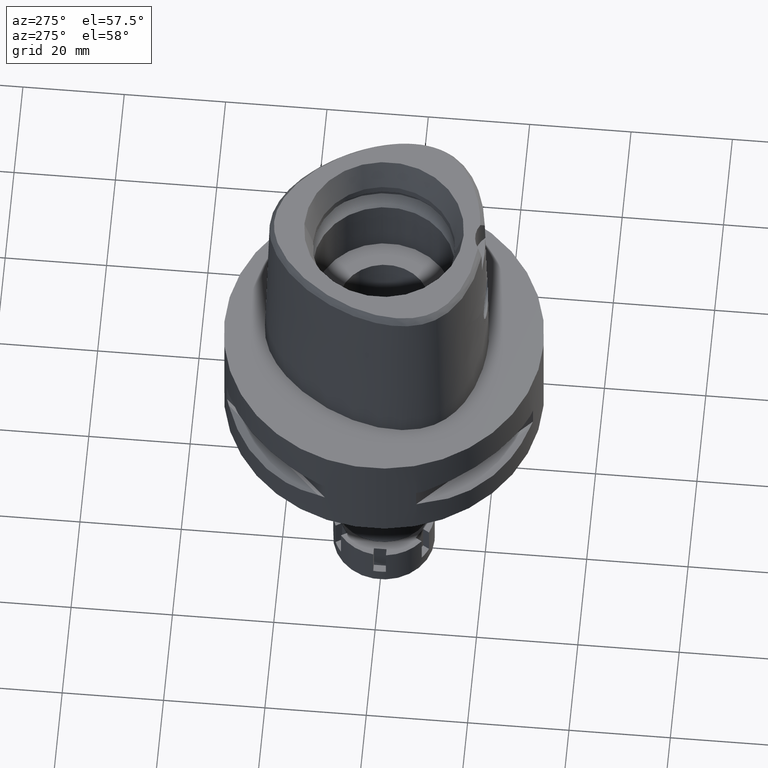
[diagram: clean part render]
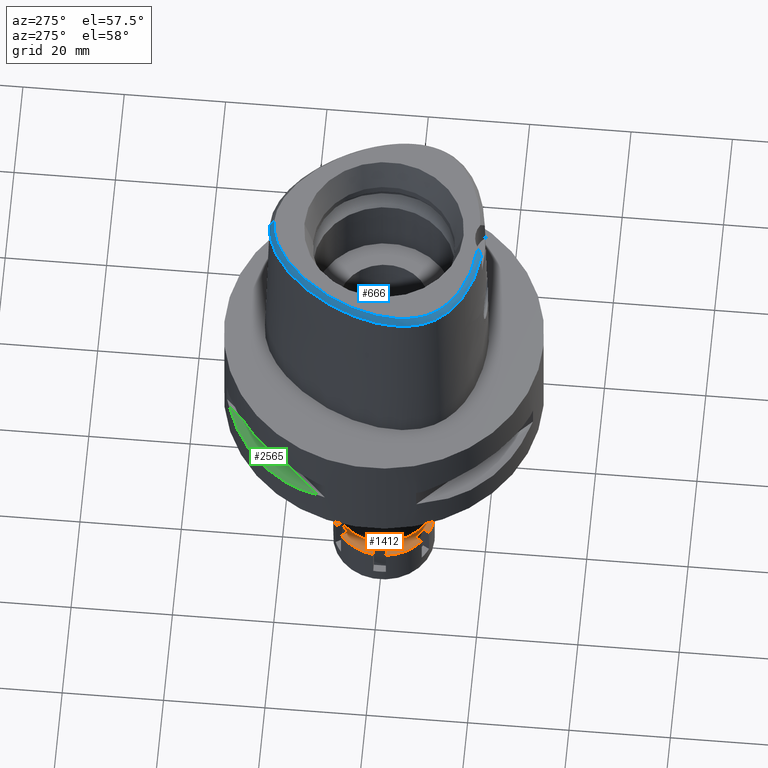
[diagram: same view with three faces highlighted in distinct colors, each labeled with its STEP entity id]
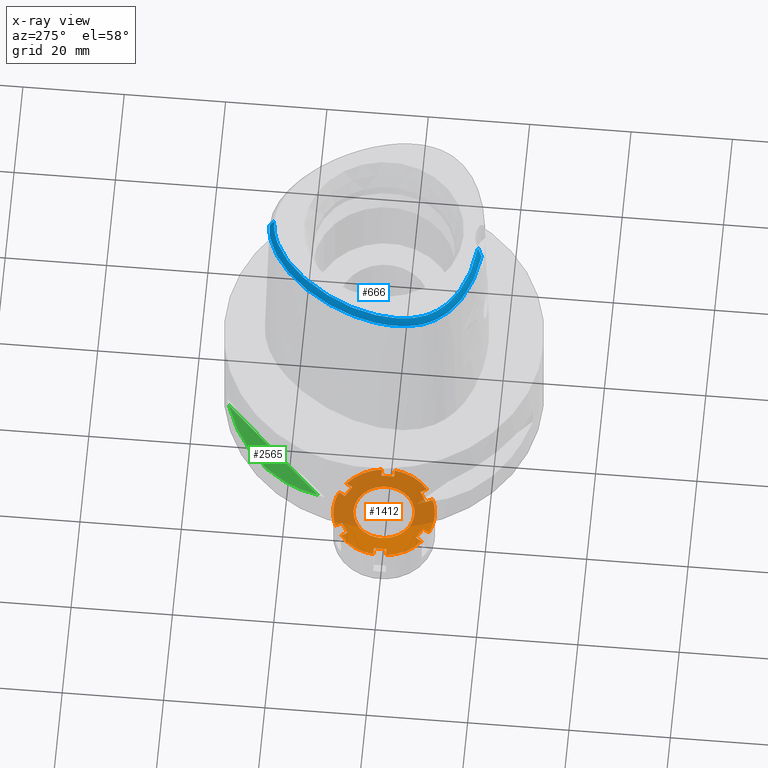
[diagram: x-ray of the same camera — body ghosted, the three highlighted faces saturated]
A machine part, auxiliary view with three faces highlighted in distinct colors.
The next image is the same camera in x-ray (body ghosted, the three faces saturated) — at least one of them is partly hidden behind the body in this view.
Their STEP definitions:

[orange] entity #1412 — the highlighted planar face has unit normal (0, 0, -1).
#14 = DIRECTION ( 'NONE',  ( 0.8660254037844536956, -0.4999999999999738542, 0.0000000000000000000 ) ) ;
#24 = ORIENTED_EDGE ( 'NONE', *, *, #4749, .T. ) ;
#35 = FACE_OUTER_BOUND ( 'NONE', #2299, .T. ) ;
#61 = ORIENTED_EDGE ( 'NONE', *, *, #2959, .F. ) ;
#62 = CARTESIAN_POINT ( 'NONE',  ( 9.921567416491999580, 1.250000000000000000, 0.0000000000000000000 ) ) ;
#78 = ORIENTED_EDGE ( 'NONE', *, *, #2606, .F. ) ;
#97 = VERTEX_POINT ( 'NONE', #4570 ) ;
#100 = VERTEX_POINT ( 'NONE', #3728 ) ;
#110 = DIRECTION ( 'NONE',  ( 0.0000000000000000000, 0.0000000000000000000, -1.000000000000000000 ) ) ;
#111 = ORIENTED_EDGE ( 'NONE', *, *, #4560, .F. ) ;
#201 = VERTEX_POINT ( 'NONE', #3702 ) ;
#210 = VERTEX_POINT ( 'NONE', #5389 ) ;
#217 = CARTESIAN_POINT ( 'NONE',  ( 8.500000000000000000, 1.250000000000000000, 0.0000000000000000000 ) ) ;
#281 = CARTESIAN_POINT ( 'NONE',  ( -8.500000000000000000, -1.250000000000000000, 0.0000000000000000000 ) ) ;
#338 = LINE ( 'NONE', #1140, #2055 ) ;
#342 = ORIENTED_EDGE ( 'NONE', *, *, #3309, .F. ) ;
#359 = DIRECTION ( 'NONE',  ( -1.000000000000000000, 0.0000000000000000000, 0.0000000000000000000 ) ) ;
#368 = CARTESIAN_POINT ( 'NONE',  ( 5.332531754731000717, -6.736215932168000187, 0.0000000000000000000 ) ) ;
#371 = VECTOR ( 'NONE', #1102, 1000.000000000000000 ) ;
#381 = DIRECTION ( 'NONE',  ( 0.5000000000000169864, 0.8660254037844288266, 0.0000000000000000000 ) ) ;
#393 = CIRCLE ( 'NONE', #1106, 9.999999999999998224 ) ;
#434 = DIRECTION ( 'NONE',  ( 0.0000000000000000000, 0.0000000000000000000, -1.000000000000000000 ) ) ;
#453 = AXIS2_PLACEMENT_3D ( 'NONE', #3677, #2493, #4505 ) ;
#454 = EDGE_CURVE ( 'NONE', #481, #4661, #1643, .T. ) ;
#481 = VERTEX_POINT ( 'NONE', #3772 ) ;
#486 = ORIENTED_EDGE ( 'NONE', *, *, #5079, .F. ) ;
#524 = ORIENTED_EDGE ( 'NONE', *, *, #4345, .F. ) ;
#541 = VERTEX_POINT ( 'NONE', #1689 ) ;
#571 = VERTEX_POINT ( 'NONE', #5048 ) ;
#585 = DIRECTION ( 'NONE',  ( 0.0000000000000000000, 0.0000000000000000000, -1.000000000000000000 ) ) ;
#623 = DIRECTION ( 'NONE',  ( -0.5000000000002097211, 0.8660254037843175823, 0.0000000000000000000 ) ) ;
#658 = CARTESIAN_POINT ( 'NONE',  ( -3.167468245269000171, 7.986215932168000187, 0.0000000000000000000 ) ) ;
#660 = LINE ( 'NONE', #3938, #5132 ) ;
#695 = CARTESIAN_POINT ( 'NONE',  ( -6.043315462977000507, -7.967329428041999506, 0.0000000000000000000 ) ) ;
#725 = ORIENTED_EDGE ( 'NONE', *, *, #2098, .F. ) ;
#743 = EDGE_CURVE ( 'NONE', #2333, #940, #4164, .T. ) ;
#745 = CARTESIAN_POINT ( 'NONE',  ( -5.332531754731000717, 6.736215932168000187, 0.0000000000000000000 ) ) ;
#752 = CIRCLE ( 'NONE', #2957, 10.00000000000000000 ) ;
#757 = VERTEX_POINT ( 'NONE', #745 ) ;
#770 = ORIENTED_EDGE ( 'NONE', *, *, #4487, .F. ) ;
#773 = DIRECTION ( 'NONE',  ( -0.5000000000000169864, 0.8660254037844288266, 0.0000000000000000000 ) ) ;
#785 = ORIENTED_EDGE ( 'NONE', *, *, #454, .T. ) ;
#802 = LINE ( 'NONE', #281, #5249 ) ;
#807 = VERTEX_POINT ( 'NONE', #4635 ) ;
#809 = VERTEX_POINT ( 'NONE', #849 ) ;
#812 = VECTOR ( 'NONE', #2459, 1000.000000000000000 ) ;
#820 = CARTESIAN_POINT ( 'NONE',  ( 6.043315462977000507, -7.967329428041999506, 0.0000000000000000000 ) ) ;
#841 = CARTESIAN_POINT ( 'NONE',  ( 3.167468245269000171, -7.986215932168000187, 0.0000000000000000000 ) ) ;
#847 = LINE ( 'NONE', #1739, #4250 ) ;
#849 = CARTESIAN_POINT ( 'NONE',  ( 9.921567416491999580, -1.250000000000000000, 0.0000000000000000000 ) ) ;
#856 = CARTESIAN_POINT ( 'NONE',  ( 0.0000000000000000000, 0.0000000000000000000, 0.0000000000000000000 ) ) ;
#899 = ORIENTED_EDGE ( 'NONE', *, *, #3928, .F. ) ;
#916 = DIRECTION ( 'NONE',  ( 0.0000000000000000000, 0.0000000000000000000, 1.000000000000000000 ) ) ;
#930 = CARTESIAN_POINT ( 'NONE',  ( -5.332531754731000717, -6.736215932168000187, 0.0000000000000000000 ) ) ;
#940 = VERTEX_POINT ( 'NONE', #2566 ) ;
#1003 = EDGE_CURVE ( 'NONE', #809, #2333, #2792, .T. ) ;
#1014 = ORIENTED_EDGE ( 'NONE', *, *, #4512, .F. ) ;
#1100 = LINE ( 'NONE', #658, #3532 ) ;
#1101 = ORIENTED_EDGE ( 'NONE', *, *, #1446, .T. ) ;
#1102 = DIRECTION ( 'NONE',  ( 1.000000000000000000, 0.0000000000000000000, 0.0000000000000000000 ) ) ;
#1106 = AXIS2_PLACEMENT_3D ( 'NONE', #3895, #3430, #1761 ) ;
#1140 = CARTESIAN_POINT ( 'NONE',  ( -3.878251953516000050, -9.217329428041999506, 0.0000000000000000000 ) ) ;
#1232 = LINE ( 'NONE', #841, #4614 ) ;
#1257 = CIRCLE ( 'NONE', #4778, 10.00000000000000000 ) ;
#1272 = DIRECTION ( 'NONE',  ( 0.3878251953515154948, -0.9217329428042371209, 0.0000000000000000000 ) ) ;
#1304 = CARTESIAN_POINT ( 'NONE',  ( 0.0000000000000000000, 0.0000000000000000000, 0.0000000000000000000 ) ) ;
#1350 = LINE ( 'NONE', #930, #3975 ) ;
#1383 = DIRECTION ( 'NONE',  ( 0.0000000000000000000, 0.0000000000000000000, -1.000000000000000000 ) ) ;
#1405 = ORIENTED_EDGE ( 'NONE', *, *, #5424, .F. ) ;
#1412 = ADVANCED_FACE ( 'NONE', ( #35, #2634 ), #4306, .F. ) ;
#1446 = EDGE_CURVE ( 'NONE', #809, #807, #3422, .T. ) ;
#1540 = CIRCLE ( 'NONE', #4434, 6.000000000000000000 ) ;
#1642 = EDGE_LOOP ( 'NONE', ( #5023, #524 ) ) ;
#1643 = LINE ( 'NONE', #4504, #4115 ) ;
#1649 = AXIS2_PLACEMENT_3D ( 'NONE', #4040, #2252, #4370 ) ;
#1655 = DIRECTION ( 'NONE',  ( -0.8660254037844536956, 0.4999999999999738542, 0.0000000000000000000 ) ) ;
#1657 = CARTESIAN_POINT ( 'NONE',  ( 3.878251953516000050, 9.217329428041999506, 0.0000000000000000000 ) ) ;
#1671 = LINE ( 'NONE', #5442, #4082 ) ;
#1682 = DIRECTION ( 'NONE',  ( -0.5000000000002097211, -0.8660254037843175823, 0.0000000000000000000 ) ) ;
#1689 = CARTESIAN_POINT ( 'NONE',  ( 5.332531754731000717, 6.736215932168000187, 0.0000000000000000000 ) ) ;
#1696 = CARTESIAN_POINT ( 'NONE',  ( 8.500000000000000000, -1.250000000000000000, 0.0000000000000000000 ) ) ;
#1708 = LINE ( 'NONE', #2998, #5074 ) ;
#1717 = DIRECTION ( 'NONE',  ( 0.0000000000000000000, 1.000000000000000000, 0.0000000000000000000 ) ) ;
#1726 = EDGE_CURVE ( 'NONE', #4661, #2625, #802, .T. ) ;
#1739 = CARTESIAN_POINT ( 'NONE',  ( 3.167468245270000260, 7.986215932168000187, 0.0000000000000000000 ) ) ;
#1761 = DIRECTION ( 'NONE',  ( 0.6043315462976971419, 0.7967329428041960426, 0.0000000000000000000 ) ) ;
#1763 = ORIENTED_EDGE ( 'NONE', *, *, #2060, .F. ) ;
#1791 = CIRCLE ( 'NONE', #4429, 10.00000000000000000 ) ;
#1796 = DIRECTION ( 'NONE',  ( 0.0000000000000000000, 0.0000000000000000000, -1.000000000000000000 ) ) ;
#1852 = ORIENTED_EDGE ( 'NONE', *, *, #2898, .F. ) ;
#1862 = EDGE_CURVE ( 'NONE', #807, #3162, #2110, .T. ) ;
#1893 = EDGE_CURVE ( 'NONE', #100, #3760, #752, .T. ) ;
#1909 = ORIENTED_EDGE ( 'NONE', *, *, #1893, .F. ) ;
#1923 = VERTEX_POINT ( 'NONE', #4751 ) ;
#2012 = AXIS2_PLACEMENT_3D ( 'NONE', #4295, #3061, #2645 ) ;
#2055 = VECTOR ( 'NONE', #3682, 1000.000000000000227 ) ;
#2060 = EDGE_CURVE ( 'NONE', #3454, #2408, #393, .T. ) ;
#2082 = ORIENTED_EDGE ( 'NONE', *, *, #1862, .T. ) ;
#2098 = EDGE_CURVE ( 'NONE', #4898, #757, #1708, .T. ) ;
#2102 = CARTESIAN_POINT ( 'NONE',  ( 6.043315462977000507, 7.967329428041999506, 0.0000000000000000000 ) ) ;
#2110 = LINE ( 'NONE', #1696, #4366 ) ;
#2120 = DIRECTION ( 'NONE',  ( 0.5000000000002097211, -0.8660254037843175823, 0.0000000000000000000 ) ) ;
#2133 = VERTEX_POINT ( 'NONE', #4234 ) ;
#2136 = DIRECTION ( 'NONE',  ( -0.3878251953515154948, 0.9217329428042371209, 0.0000000000000000000 ) ) ;
#2138 = CIRCLE ( 'NONE', #4330, 9.999999999999998224 ) ;
#2145 = AXIS2_PLACEMENT_3D ( 'NONE', #5160, #1383, #1717 ) ;
#2216 = CARTESIAN_POINT ( 'NONE',  ( 0.0000000000000000000, 0.0000000000000000000, 0.0000000000000000000 ) ) ;
#2252 = DIRECTION ( 'NONE',  ( 0.0000000000000000000, 0.0000000000000000000, -1.000000000000000000 ) ) ;
#2279 = DIRECTION ( 'NONE',  ( -1.000000000000000000, 0.0000000000000000000, 0.0000000000000000000 ) ) ;
#2299 = EDGE_LOOP ( 'NONE', ( #1014, #1909, #342, #770, #725, #3721, #5109, #785, #3587, #78, #61, #3991, #1852, #4940, #111, #1405, #899, #5451, #4844, #1101, #2082, #24, #1763, #2925, #486, #4528 ) ) ;
#2333 = VERTEX_POINT ( 'NONE', #2402 ) ;
#2346 = VERTEX_POINT ( 'NONE', #4624 ) ;
#2402 = CARTESIAN_POINT ( 'NONE',  ( 6.043315462977000507, -7.967329428041999506, 0.0000000000000000000 ) ) ;
#2408 = VERTEX_POINT ( 'NONE', #62 ) ;
#2417 = CARTESIAN_POINT ( 'NONE',  ( 5.332531754731000717, 6.736215932168000187, 0.0000000000000000000 ) ) ;
#2459 = DIRECTION ( 'NONE',  ( -0.8660254037844536956, -0.4999999999999738542, 0.0000000000000000000 ) ) ;
#2493 = DIRECTION ( 'NONE',  ( 0.0000000000000000000, 0.0000000000000000000, 1.000000000000000000 ) ) ;
#2497 = VECTOR ( 'NONE', #1655, 1000.000000000000000 ) ;
#2559 = CARTESIAN_POINT ( 'NONE',  ( 0.0000000000000000000, 0.0000000000000000000, 0.0000000000000000000 ) ) ;
#2566 = CARTESIAN_POINT ( 'NONE',  ( 5.332531754731000717, -6.736215932168000187, 0.0000000000000000000 ) ) ;
#2570 = DIRECTION ( 'NONE',  ( 0.8660254037844536956, 0.4999999999999738542, 0.0000000000000000000 ) ) ;
#2571 = DIRECTION ( 'NONE',  ( 0.0000000000000000000, 1.000000000000000000, 0.0000000000000000000 ) ) ;
#2595 = CARTESIAN_POINT ( 'NONE',  ( 0.0000000000000000000, 0.0000000000000000000, 0.0000000000000000000 ) ) ;
#2606 = EDGE_CURVE ( 'NONE', #2827, #2625, #5165, .T. ) ;
#2618 = CARTESIAN_POINT ( 'NONE',  ( 3.878251953516000050, 9.217329428041999506, 0.0000000000000000000 ) ) ;
#2625 = VERTEX_POINT ( 'NONE', #3919 ) ;
#2634 = FACE_BOUND ( 'NONE', #1642, .T. ) ;
#2645 = DIRECTION ( 'NONE',  ( 0.9921567416492210745, -0.1250000000000026090, 0.0000000000000000000 ) ) ;
#2660 = DIRECTION ( 'NONE',  ( 0.0000000000000000000, -1.000000000000000000, 0.0000000000000000000 ) ) ;
#2732 = LINE ( 'NONE', #217, #371 ) ;
#2740 = CARTESIAN_POINT ( 'NONE',  ( 9.921567416491999580, -1.250000000000000000, 0.0000000000000000000 ) ) ;
#2792 = CIRCLE ( 'NONE', #2012, 9.999999999999998224 ) ;
#2827 = VERTEX_POINT ( 'NONE', #695 ) ;
#2852 = VECTOR ( 'NONE', #1682, 1000.000000000000227 ) ;
#2889 = CARTESIAN_POINT ( 'NONE',  ( -3.167468245270000260, -7.986215932168000187, 0.0000000000000000000 ) ) ;
#2898 = EDGE_CURVE ( 'NONE', #2346, #2133, #338, .T. ) ;
#2921 = CARTESIAN_POINT ( 'NONE',  ( -3.167468245269000171, 7.986215932168000187, 0.0000000000000000000 ) ) ;
#2925 = ORIENTED_EDGE ( 'NONE', *, *, #4453, .F. ) ;
#2957 = AXIS2_PLACEMENT_3D ( 'NONE', #856, #434, #2136 ) ;
#2959 = EDGE_CURVE ( 'NONE', #97, #2827, #1350, .T. ) ;
#2988 = DIRECTION ( 'NONE',  ( 0.0000000000000000000, -1.000000000000000000, 0.0000000000000000000 ) ) ;
#2998 = CARTESIAN_POINT ( 'NONE',  ( -6.043315462977000507, 7.967329428041999506, 0.0000000000000000000 ) ) ;
#3061 = DIRECTION ( 'NONE',  ( 0.0000000000000000000, 0.0000000000000000000, -1.000000000000000000 ) ) ;
#3064 = DIRECTION ( 'NONE',  ( -0.5000000000000169864, -0.8660254037844288266, 0.0000000000000000000 ) ) ;
#3069 = EDGE_CURVE ( 'NONE', #1923, #4898, #2138, .T. ) ;
#3162 = VERTEX_POINT ( 'NONE', #3496 ) ;
#3207 = VECTOR ( 'NONE', #381, 1000.000000000000114 ) ;
#3309 = EDGE_CURVE ( 'NONE', #3497, #100, #1100, .T. ) ;
#3402 = VECTOR ( 'NONE', #2279, 1000.000000000000000 ) ;
#3422 = LINE ( 'NONE', #2740, #3402 ) ;
#3430 = DIRECTION ( 'NONE',  ( 0.0000000000000000000, 0.0000000000000000000, -1.000000000000000000 ) ) ;
#3434 = CARTESIAN_POINT ( 'NONE',  ( 3.167468245269000171, -7.986215932168000187, 0.0000000000000000000 ) ) ;
#3454 = VERTEX_POINT ( 'NONE', #2102 ) ;
#3490 = CARTESIAN_POINT ( 'NONE',  ( 0.0000000000000000000, 10.00000000000000000, 0.0000000000000000000 ) ) ;
#3496 = CARTESIAN_POINT ( 'NONE',  ( 8.500000000000000000, 1.250000000000000000, 0.0000000000000000000 ) ) ;
#3497 = VERTEX_POINT ( 'NONE', #2921 ) ;
#3532 = VECTOR ( 'NONE', #623, 1000.000000000000227 ) ;
#3587 = ORIENTED_EDGE ( 'NONE', *, *, #1726, .T. ) ;
#3673 = AXIS2_PLACEMENT_3D ( 'NONE', #1304, #110, #2988 ) ;
#3677 = CARTESIAN_POINT ( 'NONE',  ( 0.0000000000000000000, 0.0000000000000000000, 0.0000000000000000000 ) ) ;
#3682 = DIRECTION ( 'NONE',  ( 0.5000000000002097211, 0.8660254037843175823, 0.0000000000000000000 ) ) ;
#3698 = LINE ( 'NONE', #2417, #3207 ) ;
#3702 = CARTESIAN_POINT ( 'NONE',  ( 3.167468245270000260, 7.986215932168000187, 0.0000000000000000000 ) ) ;
#3717 = VERTEX_POINT ( 'NONE', #2618 ) ;
#3721 = ORIENTED_EDGE ( 'NONE', *, *, #3069, .F. ) ;
#3728 = CARTESIAN_POINT ( 'NONE',  ( -3.878251953514999961, 9.217329428041999506, 0.0000000000000000000 ) ) ;
#3760 = VERTEX_POINT ( 'NONE', #3490 ) ;
#3772 = CARTESIAN_POINT ( 'NONE',  ( -8.500000000000000000, 1.250000000000000000, 0.0000000000000000000 ) ) ;
#3850 = DIRECTION ( 'NONE',  ( 0.0000000000000000000, 0.0000000000000000000, -1.000000000000000000 ) ) ;
#3895 = CARTESIAN_POINT ( 'NONE',  ( 0.0000000000000000000, 0.0000000000000000000, 0.0000000000000000000 ) ) ;
#3919 = CARTESIAN_POINT ( 'NONE',  ( -9.921567416491999580, -1.250000000000000000, 0.0000000000000000000 ) ) ;
#3923 = CARTESIAN_POINT ( 'NONE',  ( 0.0000000000000000000, 0.0000000000000000000, 0.0000000000000000000 ) ) ;
#3928 = EDGE_CURVE ( 'NONE', #940, #5210, #4517, .T. ) ;
#3938 = CARTESIAN_POINT ( 'NONE',  ( -9.921567416491999580, 1.250000000000000000, 0.0000000000000000000 ) ) ;
#3939 = EDGE_CURVE ( 'NONE', #2133, #97, #4100, .T. ) ;
#3942 = VERTEX_POINT ( 'NONE', #5013 ) ;
#3975 = VECTOR ( 'NONE', #3064, 1000.000000000000114 ) ;
#3991 = ORIENTED_EDGE ( 'NONE', *, *, #3939, .F. ) ;
#4033 = CARTESIAN_POINT ( 'NONE',  ( -8.500000000000000000, -1.250000000000000000, 0.0000000000000000000 ) ) ;
#4040 = CARTESIAN_POINT ( 'NONE',  ( 0.0000000000000000000, 0.0000000000000000000, 0.0000000000000000000 ) ) ;
#4082 = VECTOR ( 'NONE', #2570, 1000.000000000000000 ) ;
#4100 = LINE ( 'NONE', #2889, #2497 ) ;
#4115 = VECTOR ( 'NONE', #5363, 1000.000000000000000 ) ;
#4163 = CARTESIAN_POINT ( 'NONE',  ( -6.043315462977000507, 7.967329428041999506, 0.0000000000000000000 ) ) ;
#4164 = LINE ( 'NONE', #820, #4282 ) ;
#4184 = LINE ( 'NONE', #1657, #2852 ) ;
#4213 = EDGE_CURVE ( 'NONE', #571, #2346, #1257, .T. ) ;
#4234 = CARTESIAN_POINT ( 'NONE',  ( -3.167468245270000260, -7.986215932168000187, 0.0000000000000000000 ) ) ;
#4250 = VECTOR ( 'NONE', #14, 1000.000000000000000 ) ;
#4261 = DIRECTION ( 'NONE',  ( 0.5000000000000169864, -0.8660254037844288266, 0.0000000000000000000 ) ) ;
#4282 = VECTOR ( 'NONE', #773, 1000.000000000000114 ) ;
#4295 = CARTESIAN_POINT ( 'NONE',  ( 0.0000000000000000000, 0.0000000000000000000, 0.0000000000000000000 ) ) ;
#4306 = PLANE ( 'NONE',  #3673 ) ;
#4323 = DIRECTION ( 'NONE',  ( -0.9921567416492210745, 0.1250000000000026090, 0.0000000000000000000 ) ) ;
#4330 = AXIS2_PLACEMENT_3D ( 'NONE', #2595, #1796, #4323 ) ;
#4345 = EDGE_CURVE ( 'NONE', #3942, #210, #5223, .T. ) ;
#4366 = VECTOR ( 'NONE', #2571, 1000.000000000000000 ) ;
#4370 = DIRECTION ( 'NONE',  ( -0.6043315462976971419, -0.7967329428041960426, 0.0000000000000000000 ) ) ;
#4429 = AXIS2_PLACEMENT_3D ( 'NONE', #2216, #3850, #1272 ) ;
#4434 = AXIS2_PLACEMENT_3D ( 'NONE', #2559, #916, #4627 ) ;
#4453 = EDGE_CURVE ( 'NONE', #541, #3454, #3698, .T. ) ;
#4487 = EDGE_CURVE ( 'NONE', #757, #3497, #1671, .T. ) ;
#4504 = CARTESIAN_POINT ( 'NONE',  ( -8.500000000000000000, 1.250000000000000000, 0.0000000000000000000 ) ) ;
#4505 = DIRECTION ( 'NONE',  ( 0.0000000000000000000, -1.000000000000000000, 0.0000000000000000000 ) ) ;
#4512 = EDGE_CURVE ( 'NONE', #3760, #3717, #5402, .T. ) ;
#4517 = LINE ( 'NONE', #368, #812 ) ;
#4528 = ORIENTED_EDGE ( 'NONE', *, *, #5432, .F. ) ;
#4560 = EDGE_CURVE ( 'NONE', #5076, #571, #1791, .T. ) ;
#4570 = CARTESIAN_POINT ( 'NONE',  ( -5.332531754731000717, -6.736215932168000187, 0.0000000000000000000 ) ) ;
#4614 = VECTOR ( 'NONE', #2120, 1000.000000000000227 ) ;
#4624 = CARTESIAN_POINT ( 'NONE',  ( -3.878251953516000050, -9.217329428041999506, 0.0000000000000000000 ) ) ;
#4627 = DIRECTION ( 'NONE',  ( 0.0000000000000000000, 1.000000000000000000, 0.0000000000000000000 ) ) ;
#4635 = CARTESIAN_POINT ( 'NONE',  ( 8.500000000000000000, -1.250000000000000000, 0.0000000000000000000 ) ) ;
#4661 = VERTEX_POINT ( 'NONE', #4033 ) ;
#4727 = EDGE_CURVE ( 'NONE', #1923, #481, #660, .T. ) ;
#4749 = EDGE_CURVE ( 'NONE', #3162, #2408, #2732, .T. ) ;
#4751 = CARTESIAN_POINT ( 'NONE',  ( -9.921567416491999580, 1.250000000000000000, 0.0000000000000000000 ) ) ;
#4778 = AXIS2_PLACEMENT_3D ( 'NONE', #3923, #585, #2660 ) ;
#4844 = ORIENTED_EDGE ( 'NONE', *, *, #1003, .F. ) ;
#4898 = VERTEX_POINT ( 'NONE', #4163 ) ;
#4940 = ORIENTED_EDGE ( 'NONE', *, *, #4213, .F. ) ;
#5013 = CARTESIAN_POINT ( 'NONE',  ( 0.0000000000000000000, -6.000000000000000000, 0.0000000000000000000 ) ) ;
#5023 = ORIENTED_EDGE ( 'NONE', *, *, #5399, .F. ) ;
#5044 = CARTESIAN_POINT ( 'NONE',  ( 3.878251953514999961, -9.217329428041999506, 0.0000000000000000000 ) ) ;
#5048 = CARTESIAN_POINT ( 'NONE',  ( 0.0000000000000000000, -10.00000000000000000, 0.0000000000000000000 ) ) ;
#5074 = VECTOR ( 'NONE', #4261, 1000.000000000000114 ) ;
#5076 = VERTEX_POINT ( 'NONE', #5044 ) ;
#5079 = EDGE_CURVE ( 'NONE', #201, #541, #847, .T. ) ;
#5109 = ORIENTED_EDGE ( 'NONE', *, *, #4727, .T. ) ;
#5132 = VECTOR ( 'NONE', #5188, 1000.000000000000000 ) ;
#5160 = CARTESIAN_POINT ( 'NONE',  ( 0.0000000000000000000, 0.0000000000000000000, 0.0000000000000000000 ) ) ;
#5165 = CIRCLE ( 'NONE', #1649, 9.999999999999998224 ) ;
#5188 = DIRECTION ( 'NONE',  ( 1.000000000000000000, 0.0000000000000000000, 0.0000000000000000000 ) ) ;
#5210 = VERTEX_POINT ( 'NONE', #3434 ) ;
#5223 = CIRCLE ( 'NONE', #453, 6.000000000000000000 ) ;
#5249 = VECTOR ( 'NONE', #359, 1000.000000000000000 ) ;
#5363 = DIRECTION ( 'NONE',  ( 0.0000000000000000000, -1.000000000000000000, 0.0000000000000000000 ) ) ;
#5389 = CARTESIAN_POINT ( 'NONE',  ( 0.0000000000000000000, 6.000000000000000000, 0.0000000000000000000 ) ) ;
#5399 = EDGE_CURVE ( 'NONE', #210, #3942, #1540, .T. ) ;
#5402 = CIRCLE ( 'NONE', #2145, 10.00000000000000000 ) ;
#5424 = EDGE_CURVE ( 'NONE', #5210, #5076, #1232, .T. ) ;
#5432 = EDGE_CURVE ( 'NONE', #3717, #201, #4184, .T. ) ;
#5442 = CARTESIAN_POINT ( 'NONE',  ( -5.332531754731000717, 6.736215932168000187, 0.0000000000000000000 ) ) ;
#5451 = ORIENTED_EDGE ( 'NONE', *, *, #743, .F. ) ;

[blue] entity #666 — the highlighted face is a freeform B-spline surface patch.
#26 = B_SPLINE_SURFACE_WITH_KNOTS ( 'NONE', 3, 3, ( 
 ( #1938, #3612, #3964, #3495 ),
 ( #2756, #2269, #1496, #569 ),
 ( #2673, #5185, #539, #2647 ),
 ( #154, #4322, #2238, #3935 ),
 ( #598, #4383, #3150, #4827 ),
 ( #1040, #657, #2729, #1853 ),
 ( #4438, #2357, #1406, #1881 ),
 ( #126, #1827, #1433, #180 ),
 ( #4408, #622, #1067, #3521 ),
 ( #2324, #3088, #3550, #4767 ),
 ( #1910, #977, #5211, #3993 ),
 ( #5296, #213, #5270, #3115 ),
 ( #4854, #4799, #1012, #245 ),
 ( #3585, #3176, #2784, #4556 ),
 ( #1127, #4473, #4885, #2869 ),
 ( #2046, #1186, #4078, #684 ),
 ( #2074, #2437, #1963, #1554 ),
 ( #708, #5404, #2812, #792 ),
 ( #3635, #2383, #1099, #1211 ),
 ( #4053, #271, #2409, #5357 ),
 ( #1156, #5379, #3691, #3202 ),
 ( #1608, #4498, #5326, #2895 ),
 ( #3232, #326, #4914, #768 ),
 ( #2486, #296, #2839, #4994 ),
 ( #4526, #3283, #4969, #2022 ),
 ( #4580, #4110, #4941, #3715 ),
 ( #2464, #3666, #1994, #1582 ),
 ( #3257, #4136, #348, #4160 ),
 ( #1634, #3312, #738, #373 ),
 ( #3741, #1522, #5017, #1234 ),
 ( #2101, #2920, #4603, #815 ),
 ( #2513, #4187, #399, #3337 ),
 ( #5434, #1661, #4388, #3068 ),
 ( #984, #219, #3969, #1887 ),
 ( #2652, #576, #3527, #2711 ),
 ( #3559, #5246, #1385, #3156 ),
 ( #1473, #4773, #4750, #4861 ),
 ( #3501, #187, #959, #2736 ),
 ( #662, #4327, #4805, #3182 ),
 ( #1018, #4832, #1046, #4415 ),
 ( #1075, #2303, #3122, #1917 ),
 ( #628, #2331, #2275, #604 ),
 ( #3590, #4001, #5275, #1501 ),
 ( #2244, #2761, #4448, #3910 ),
 ( #4359, #132, #1440, #547 ),
 ( #2365, #3941, #1834, #4035 ),
 ( #250, #1943, #5164, #5191 ),
 ( #1413, #3093, #2682, #5217 ),
 ( #160, #1858, #2000, #5301 ),
 ( #1103, #4831, #249, #4387 ),
 ( #1558, #3558, #2710, #2364 ),
 ( #4945, #4057, #4918, #1586 ),
 ( #4502, #1916, #603, #712 ),
 ( #3181, #3671, #3968, #275 ),
 ( #2329, #185, #2302, #1969 ),
 ( #3237, #2387, #5274, #1886 ),
 ( #3261, #3616, #3155, #2735 ),
 ( #3589, #4478, #1529, #1045 ),
 ( #3208, #661, #1132, #4034 ),
 ( #4860, #4000, #1500, #4414 ),
 ( #4890, #3642, #5361, #5245 ),
 ( #1074, #5333, #2760, #2816 ) ),
 .UNSPECIFIED., .F., .F., .F.,
 ( 4, 1, 1, 1, 1, 1, 1, 1, 1, 1, 1, 1, 1, 1, 1, 1, 1, 1, 1, 1, 1, 1, 1, 1, 1, 1, 1, 1, 1, 1, 1, 1, 1, 1, 1, 1, 1, 1, 1, 1, 1, 1, 1, 1, 1, 1, 1, 1, 1, 1, 1, 1, 1, 1, 1, 1, 1, 1, 1, 4 ),
 ( 4, 4 ),
 ( -0.01585043674195000044, 0.0000000000000000000, 0.01776034072165999858, 0.03552068144391999638, 0.05328102216616999870, 0.07104136288842999303, 0.08880170361069000817, 0.1065620443330000111, 0.1243223850551999909, 0.1420827257775000019, 0.1598430664997000095, 0.1776034072219000171, 0.1953637479442000002, 0.2131240886664000078, 0.2308844293887999943, 0.2486447701109999742, 0.2664051108332999851, 0.2841654515554999927, 0.3019257922778000314, 0.3196861329999999835, 0.3374464737223000221, 0.3552068144444999742, 0.3729671551668000129, 0.3907274958890999961, 0.4084878366113000037, 0.4262481773335999868, 0.4440085180557999944, 0.4617688587780999776, 0.4795291995003000407, 0.4972895402225999684, 0.5150498809447999760, 0.5328102216671000146, 0.5505705623893999423, 0.5683309031115999499, 0.5860912438338999886, 0.6038515845561001072, 0.6216119252783999238, 0.6393722660005999314, 0.6571326067228999701, 0.6748929474452000088, 0.6926532881674000164, 0.7104136288896999440, 0.7281739696118999516, 0.7459343103341999903, 0.7636946510563999979, 0.7814549917787000366, 0.7992153325008999332, 0.8169756732231999719, 0.8347360139455000105, 0.8524963546678000492, 0.8702566953900000568, 0.8880170361122000644, 0.9057773768344999921, 0.9235377175566999997, 0.9412980582790000383, 0.9590583990012000459, 0.9768187397236000047, 0.9945790804457999013, 1.000000000000000000, 1.006922200500000031 ),
 ( -0.07540910450434000489, 1.075436548627000111 ),
 .UNSPECIFIED. ) ;
#28 = CARTESIAN_POINT ( 'NONE',  ( -5.058220461389369760, 20.53445508814619558, 38.00000000000215294 ) ) ;
#55 = CARTESIAN_POINT ( 'NONE',  ( -8.578220530114165854, 18.44656747109169004, 38.00000000000308376 ) ) ;
#126 = CARTESIAN_POINT ( 'NONE',  ( -3.455094024799000074, 21.05294491063999729, 38.14548667003000304 ) ) ;
#132 = CARTESIAN_POINT ( 'NONE',  ( -17.64719929045999791, -12.85908896171000038, 37.55576789008999583 ) ) ;
#149 = CARTESIAN_POINT ( 'NONE',  ( -1.528869574988000191E-11, 22.56201468012000078, 36.52186680743999858 ) ) ;
#154 = CARTESIAN_POINT ( 'NONE',  ( -0.6445009571745999866, 21.58780025949999981, 38.14548673204000551 ) ) ;
#160 = CARTESIAN_POINT ( 'NONE',  ( -14.95384635199999934, -14.75540857752999813, 38.14548662443999660 ) ) ;
#175 = CARTESIAN_POINT ( 'NONE',  ( -13.70645028111290564, 15.04851272300890841, 36.52186244848001451 ) ) ;
#180 = CARTESIAN_POINT ( 'NONE',  ( -3.770326668799999670, 22.05194275184999952, 36.37633065592000037 ) ) ;
#185 = CARTESIAN_POINT ( 'NONE',  ( -9.004917543260001267, -17.90213119435999900, 37.55576901197000694 ) ) ;
#187 = CARTESIAN_POINT ( 'NONE',  ( -20.03411694336999815, -8.620240429655000369, 37.55576786783999665 ) ) ;
#213 = CARTESIAN_POINT ( 'NONE',  ( -6.892979802223999641, 19.88113873089999828, 37.55576787599999733 ) ) ;
#219 = CARTESIAN_POINT ( 'NONE',  ( -20.62645950362999869, -5.295485928525000219, 37.55576814548999920 ) ) ;
#245 = CARTESIAN_POINT ( 'NONE',  ( -8.187222525590001965, 19.89520313440000265, 36.37633024442000362 ) ) ;
#249 = CARTESIAN_POINT ( 'NONE',  ( -14.53044811207000109, -15.86681179625000127, 36.96604935072999609 ) ) ;
#250 = CARTESIAN_POINT ( 'NONE',  ( -16.30341870079999822, -13.69991092645000030, 38.14548672778000338 ) ) ;
#271 = CARTESIAN_POINT ( 'NONE',  ( -14.55589522978999995, 12.70341506635000073, 37.55576807051000543 ) ) ;
#275 = CARTESIAN_POINT ( 'NONE',  ( -10.49090448974999923, -18.15304303454000134, 36.37633277888999572 ) ) ;
#296 = CARTESIAN_POINT ( 'NONE',  ( -17.84166926259999997, 7.211922805241000489, 37.55576815522000089 ) ) ;
#326 = CARTESIAN_POINT ( 'NONE',  ( -17.11826533368000014, 8.642063436665997855, 37.55576797994000060 ) ) ;
#348 = CARTESIAN_POINT ( 'NONE',  ( -20.23722539540999676, 1.672500847093999932, 36.96605173592000426 ) ) ;
#373 = CARTESIAN_POINT ( 'NONE',  ( -20.88374686396999991, 0.4164193300173000267, 36.37633368796999633 ) ) ;
#384 = CARTESIAN_POINT ( 'NONE',  ( -19.78262210840316015, -8.543146992553014130, 38.00000000000367351 ) ) ;
#399 = CARTESIAN_POINT ( 'NONE',  ( -20.99455975993999957, -3.250825700290999709, 36.96604901720999692 ) ) ;
#496 = CARTESIAN_POINT ( 'NONE',  ( -9.524337278001837603, 17.70558492631809244, 38.00000000000127187 ) ) ;
#539 = CARTESIAN_POINT ( 'NONE',  ( -0.02689059511475000094, 22.30554316419999950, 36.96604924433999173 ) ) ;
#547 = CARTESIAN_POINT ( 'NONE',  ( -18.16758583426999962, -13.32486620781000042, 36.37633025907999951 ) ) ;
#557 = CARTESIAN_POINT ( 'NONE',  ( -3.470663397188000578E-11, 21.68728795390000030, 38.00000000000000000 ) ) ;
#569 = CARTESIAN_POINT ( 'NONE',  ( 0.4270377487817000328, 22.64225779043000131, 36.37633019756999886 ) ) ;
#576 = CARTESIAN_POINT ( 'NONE',  ( -20.54008391582999948, -6.213740396906000107, 37.55576799957000134 ) ) ;
#591 = CARTESIAN_POINT ( 'NONE',  ( -10.91891098964753226, -18.03046406390410894, 36.52186244848001451 ) ) ;
#598 = CARTESIAN_POINT ( 'NONE',  ( -1.312964808659000004, 21.52550651622999922, 38.14548676288000451 ) ) ;
#603 = CARTESIAN_POINT ( 'NONE',  ( -11.55077706065999976, -17.37409055335000119, 36.96604887784999249 ) ) ;
#604 = CARTESIAN_POINT ( 'NONE',  ( -19.49825770900000066, -11.53410520518000126, 36.37633039737000473 ) ) ;
#622 = CARTESIAN_POINT ( 'NONE',  ( -4.348214534955999966, 21.11239688426999805, 37.55576786747000284 ) ) ;
#628 = CARTESIAN_POINT ( 'NONE',  ( -18.60241690532000192, -10.99094522335999891, 38.14548669320000585 ) ) ;
#649 = CARTESIAN_POINT ( 'NONE',  ( -19.88562090098661983, 4.345879983792164225, 36.52186244848001451 ) ) ;
#657 = CARTESIAN_POINT ( 'NONE',  ( -2.065644411550000115, 21.76132510904999862, 37.55576787062000221 ) ) ;
#661 = CARTESIAN_POINT ( 'NONE',  ( -3.550544267368999751, -18.96959034296000013, 37.55576811621999411 ) ) ;
#662 = CARTESIAN_POINT ( 'NONE',  ( -19.46851566249000243, -9.197972175951001361, 38.14548666971000301 ) ) ;
#666 = ADVANCED_FACE ( 'NONE', ( #5241 ), #26, .F. ) ;
#684 = CARTESIAN_POINT ( 'NONE',  ( -11.13900143308999979, 17.57506534516999963, 36.37633418560999843 ) ) ;
#693 = CARTESIAN_POINT ( 'NONE',  ( -15.00295592773484898, -14.82617991126020485, 37.99999999999762679 ) ) ;
#698 = VERTEX_POINT ( 'NONE', #2790 ) ;
#708 = CARTESIAN_POINT ( 'NONE',  ( -12.37700347368000031, 14.83382992029999947, 38.14548663285999908 ) ) ;
#712 = CARTESIAN_POINT ( 'NONE',  ( -11.68359456007999952, -17.69698033275000171, 36.37632995012999260 ) ) ;
#738 = CARTESIAN_POINT ( 'NONE',  ( -20.54166317238999895, 0.3466248300277999794, 36.96605125810000203 ) ) ;
#753 = CARTESIAN_POINT ( 'NONE',  ( -14.21001600787804264, -15.34519100085815957, 37.99999999999742784 ) ) ;
#768 = CARTESIAN_POINT ( 'NONE',  ( -17.73365865227000171, 8.971926317427998399, 36.37633058749000270 ) ) ;
#780 = CARTESIAN_POINT ( 'NONE',  ( -13.40435640711597287, 13.76268382997545459, 37.99999999999911182 ) ) ;
#792 = CARTESIAN_POINT ( 'NONE',  ( -13.15727274847999873, 15.53250450348000022, 36.37633107074999828 ) ) ;
#815 = CARTESIAN_POINT ( 'NONE',  ( -21.26165838991000001, -2.083231451489000019, 36.37632976542000307 ) ) ;
#830 = CARTESIAN_POINT ( 'NONE',  ( -4.254559144977560159, 20.86660163697350612, 37.99999999999506173 ) ) ;
#892 = EDGE_CURVE ( 'NONE', #3906, #698, #5106, .T. ) ;
#959 = CARTESIAN_POINT ( 'NONE',  ( -20.36797672718000030, -8.722582087082999536, 36.96604902280000005 ) ) ;
#977 = CARTESIAN_POINT ( 'NONE',  ( -6.014422585839000135, 20.36595392107000180, 37.55576804790000978 ) ) ;
#980 = ORIENTED_EDGE ( 'NONE', *, *, #3498, .F. ) ;
#984 = CARTESIAN_POINT ( 'NONE',  ( -20.27802616634000188, -5.272898222200999463, 38.14548662194000173 ) ) ;
#1006 = CARTESIAN_POINT ( 'NONE',  ( -18.90964971338465972, -12.28759719904739178, 36.52186244848001451 ) ) ;
#1012 = CARTESIAN_POINT ( 'NONE',  ( -7.993999606417999004, 19.60439535540000122, 36.96604906524999734 ) ) ;
#1018 = CARTESIAN_POINT ( 'NONE',  ( -19.20724043339999909, -9.834584173273000829, 38.14548669404999970 ) ) ;
#1034 = CARTESIAN_POINT ( 'NONE',  ( -17.27359245833243406, 9.972912913897960863, 36.52186244848001451 ) ) ;
#1040 = CARTESIAN_POINT ( 'NONE',  ( -2.001102303136999883, 21.41814363534000165, 38.14548671196000384 ) ) ;
#1045 = CARTESIAN_POINT ( 'NONE',  ( -4.843017384276000037, -19.51876528352000051, 36.37633023450000280 ) ) ;
#1046 = CARTESIAN_POINT ( 'NONE',  ( -19.84505944201000105, -10.11912033918999931, 36.96604915657000134 ) ) ;
#1056 = B_SPLINE_CURVE_WITH_KNOTS ( 'NONE', 3,
 ( #3491, #5265, #4378, #591, #3930, #2351, #3059, #1006, #4849, #2292, #2700, #3544, #3959, #2642, #649, #1034, #175, #4793, #1905, #1875, #5235, #4403, #149 ),
 .UNSPECIFIED., .F., .F.,
 ( 4, 1, 1, 1, 1, 1, 1, 1, 1, 1, 1, 1, 1, 1, 1, 1, 1, 1, 1, 1, 4 ),
 ( 0.0000000000000000000, 0.03580973941716672493, 0.1234633994701228310, 0.1672902294965483427, 0.2111170595229738267, 0.2549438895495045321, 0.2768573045626121498, 0.2987707195758248502, 0.3206841345891427442, 0.3425975496023555555, 0.3864243796287809563, 0.4302512096552064680, 0.4740780396816319242, 0.5617316997344828922, 0.6493853597874390537, 0.7370390198402900772, 0.8246926798931409897, 0.8685195099196716395, 0.9123463399460656209, 0.9561731699725016798, 1.000000000000000000 ),
 .UNSPECIFIED. ) ;
#1067 = CARTESIAN_POINT ( 'NONE',  ( -4.472542210536000873, 21.43869045659999628, 36.96604902194000175 ) ) ;
#1074 = CARTESIAN_POINT ( 'NONE',  ( -2.063322010714000232, -18.73785383434000096, 38.14548663088999803 ) ) ;
#1075 = CARTESIAN_POINT ( 'NONE',  ( -18.91886135873999919, -10.42976681666000083, 38.14548673625000674 ) ) ;
#1099 = CARTESIAN_POINT ( 'NONE',  ( -13.87959637244000000, 14.14845573023000114, 36.96604871524999680 ) ) ;
#1103 = CARTESIAN_POINT ( 'NONE',  ( -14.16492817047999964, -15.27179400568000034, 38.14548666673000099 ) ) ;
#1113 = CARTESIAN_POINT ( 'NONE',  ( -17.45119705494150963, -12.68365517585710833, 38.00000000000115818 ) ) ;
#1127 = CARTESIAN_POINT ( 'NONE',  ( -9.469442653188998804, 17.63921054971999780, 38.14548657415999600 ) ) ;
#1132 = CARTESIAN_POINT ( 'NONE',  ( -3.587246270579000029, -19.31669907849000012, 36.96604960092000169 ) ) ;
#1138 = CARTESIAN_POINT ( 'NONE',  ( -20.36398648679665513, -5.278470727085546876, 37.99999999999654676 ) ) ;
#1156 = CARTESIAN_POINT ( 'NONE',  ( -15.17519443933000112, 11.20949988789999985, 38.14548662133000079 ) ) ;
#1168 = CARTESIAN_POINT ( 'NONE',  ( -11.31790883121459146, -16.80796958613372993, 37.99999999999855760 ) ) ;
#1177 = CARTESIAN_POINT ( 'NONE',  ( -2.682279906006999948, -18.78035848609999903, 38.00000000000000000 ) ) ;
#1186 = CARTESIAN_POINT ( 'NONE',  ( -10.66729225875999987, 17.06022994465000053, 37.55576896438000034 ) ) ;
#1199 = CARTESIAN_POINT ( 'NONE',  ( -19.98419490691890132, -7.809898894995724206, 37.99999999999909761 ) ) ;
#1211 = CARTESIAN_POINT ( 'NONE',  ( -14.15065174126999992, 14.36848256368999976, 36.37632969479999900 ) ) ;
#1222 = CARTESIAN_POINT ( 'NONE',  ( -20.40060226223197759, -4.311417605381612006, 38.00000000000603961 ) ) ;
#1225 = B_SPLINE_CURVE_WITH_KNOTS ( 'NONE', 3,
 ( #1977, #3727, #2452, #4897, #4483, #2009, #4951, #5340, #1168, #1647, #2908, #753, #693, #2034, #1568, #2853, #1113, #3245, #2475, #2393, #4064, #4539, #4926, #384, #1199, #3326, #2498, #1138, #1222, #2822, #4507, #4171, #2421, #3679, #5367, #1594, #2883, #4124, #3701, #5388, #1619, #4569, #780, #4247, #5444, #3441, #496, #55, #5104, #5029, #3803, #28, #830, #2551, #2985, #1301, #1673, #3044, #3369, #2603 ),
 .UNSPECIFIED., .F., .F.,
 ( 4, 1, 1, 1, 1, 1, 1, 1, 1, 1, 1, 1, 1, 1, 1, 1, 1, 1, 1, 1, 1, 1, 1, 1, 1, 1, 1, 1, 1, 1, 1, 1, 1, 1, 1, 1, 1, 1, 1, 1, 1, 1, 1, 1, 1, 1, 1, 1, 1, 1, 1, 1, 1, 1, 1, 1, 1, 4 ),
 ( 0.0000000000000000000, 0.005420919554200098744, 0.02318126027639999531, 0.04094160099879995407, 0.05870194172099996166, 0.07646228244330000035, 0.09422262316550000794, 0.1119829638877999356, 0.1297433046099999432, 0.1475036453321999508, 0.1652639860544999895, 0.1830243267768000281, 0.2007846674991000668, 0.2185450082212999634, 0.2363053489436000021, 0.2540656896658000097, 0.2718260303881000484, 0.2895863711103000560, 0.3073467118325999836, 0.3251070525547999912, 0.3428673932771000299, 0.3606277339994000686, 0.3783880747216000762, 0.3961484154438998928, 0.4139087561661000114, 0.4316690968884000501, 0.4494294376106000577, 0.4671897783328999854, 0.4849501190552000240, 0.5027104597774000316, 0.5204708004996999593, 0.5382311412219000779, 0.5559914819442000056, 0.5737518226664000132, 0.5915121633886999408, 0.6092725041108999484, 0.6270328448331999871, 0.6447931855555000258, 0.6625535262777000334, 0.6803138669999999610, 0.6980742077221999686, 0.7158345484445000073, 0.7335948891667000149, 0.7513552298890000536, 0.7691155706112000612, 0.7868759113336000199, 0.8046362520558000275, 0.8223965927780999552, 0.8401569335002999628, 0.8579172742224999704, 0.8756776149448000091, 0.8934379556670000166, 0.9111982963893099363, 0.9289586371115700070, 0.9467189778338299666, 0.9644793185560800453, 0.9822396592783400049, 1.000000000000000000 ),
 .UNSPECIFIED. ) ;
#1234 = CARTESIAN_POINT ( 'NONE',  ( -21.11057946050999945, -0.8658200261284999533, 36.37633071161999965 ) ) ;
#1262 = LINE ( 'NONE', #3358, #2140 ) ;
#1301 = CARTESIAN_POINT ( 'NONE',  ( -2.017025177696788241, 21.50280829367686763, 37.99999999999668177 ) ) ;
#1385 = CARTESIAN_POINT ( 'NONE',  ( -20.75333842755999925, -7.133207463137000381, 36.96604892245999707 ) ) ;
#1406 = CARTESIAN_POINT ( 'NONE',  ( -2.884940149405999854, 21.93935756343999799, 36.96604940929000094 ) ) ;
#1413 = CARTESIAN_POINT ( 'NONE',  ( -15.66483265489999965, -14.23056591650999891, 38.14548669794000091 ) ) ;
#1433 = CARTESIAN_POINT ( 'NONE',  ( -3.665249120799999982, 21.71894347144999671, 36.96604932728999415 ) ) ;
#1440 = CARTESIAN_POINT ( 'NONE',  ( -17.90739256236999921, -13.09197758476000040, 36.96604907458000611 ) ) ;
#1473 = CARTESIAN_POINT ( 'NONE',  ( -19.90047099557999744, -7.789614030341000195, 38.14548672208000113 ) ) ;
#1496 = CARTESIAN_POINT ( 'NONE',  ( 0.4140710096847000088, 22.29345815721999813, 36.96604903541999931 ) ) ;
#1500 = CARTESIAN_POINT ( 'NONE',  ( -2.686641903187000135, -19.39534483658000141, 36.96604967178999601 ) ) ;
#1501 = CARTESIAN_POINT ( 'NONE',  ( -19.10695515587000060, -12.13668984960999886, 36.37632991766999169 ) ) ;
#1522 = CARTESIAN_POINT ( 'NONE',  ( -20.42017044099999978, -0.9703334614786000012, 37.55576801389999986 ) ) ;
#1529 = CARTESIAN_POINT ( 'NONE',  ( -4.793613680822000234, -19.17316234916000184, 36.96604905893000392 ) ) ;
#1554 = CARTESIAN_POINT ( 'NONE',  ( -12.14948741159999912, 16.60294363289999708, 36.37633399025000358 ) ) ;
#1558 = CARTESIAN_POINT ( 'NONE',  ( -13.29356991042000224, -15.77573390525000008, 38.14548671640999800 ) ) ;
#1568 = CARTESIAN_POINT ( 'NONE',  ( -16.36032397153762119, -13.76458520345047987, 38.00000000000514433 ) ) ;
#1582 = CARTESIAN_POINT ( 'NONE',  ( -20.18137487603999958, 3.153193705415000103, 36.37633226816999610 ) ) ;
#1586 = CARTESIAN_POINT ( 'NONE',  ( -12.78312196747999785, -17.20967657506000137, 36.37633001937999921 ) ) ;
#1594 = CARTESIAN_POINT ( 'NONE',  ( -18.79649882725145105, 4.256255933891327281, 37.99999999999468514 ) ) ;
#1608 = CARTESIAN_POINT ( 'NONE',  ( -16.02415801397000195, 9.864509356619999281, 38.14548670893000093 ) ) ;
#1619 = CARTESIAN_POINT ( 'NONE',  ( -15.24692477332782481, 11.25717358966184811, 38.00000000000104450 ) ) ;
#1634 = CARTESIAN_POINT ( 'NONE',  ( -19.85749578923000058, 0.2070358300488999992, 38.14548639835000188 ) ) ;
#1647 = CARTESIAN_POINT ( 'NONE',  ( -12.37132652997702031, -16.34104299088301104, 37.99999999999319300 ) ) ;
#1661 = CARTESIAN_POINT ( 'NONE',  ( -20.66360948568000211, -4.313872341336000282, 37.55576792046000634 ) ) ;
#1673 = CARTESIAN_POINT ( 'NONE',  ( -1.323674540694041779, 21.61098849315621706, 38.00000000000412825 ) ) ;
#1746 = EDGE_CURVE ( 'NONE', #3906, #4215, #1225, .T. ) ;
#1824 = CARTESIAN_POINT ( 'NONE',  ( -3.637738201363999835, -19.56971413236999879, 36.52186244848000030 ) ) ;
#1827 = CARTESIAN_POINT ( 'NONE',  ( -3.560171572799000206, 21.38594419104000011, 37.55576799866000215 ) ) ;
#1834 = CARTESIAN_POINT ( 'NONE',  ( -17.36723741819000111, -13.66089247814000096, 36.96604898166999931 ) ) ;
#1853 = CARTESIAN_POINT ( 'NONE',  ( -2.194728628376000135, 22.44768805646999965, 36.37633018795000339 ) ) ;
#1858 = CARTESIAN_POINT ( 'NONE',  ( -15.15290811997999931, -15.04227456250000117, 37.55576813785999946 ) ) ;
#1875 = CARTESIAN_POINT ( 'NONE',  ( -4.757642277158764088, 21.67478330406883558, 36.52186244848001451 ) ) ;
#1881 = CARTESIAN_POINT ( 'NONE',  ( -2.970060976932000329, 22.27801512325000033, 36.37633078468999770 ) ) ;
#1886 = CARTESIAN_POINT ( 'NONE',  ( -7.826893328635001090, -18.94403007665999894, 36.37633315137999546 ) ) ;
#1887 = CARTESIAN_POINT ( 'NONE',  ( -21.32332617823000120, -5.340661341174000931, 36.37633119256999947 ) ) ;
#1905 = CARTESIAN_POINT ( 'NONE',  ( -7.108589416785607185, 20.52412325828252904, 36.52186244848001451 ) ) ;
#1910 = CARTESIAN_POINT ( 'NONE',  ( -5.853955413869999624, 20.05584965461999758, 38.14548665391000526 ) ) ;
#1916 = CARTESIAN_POINT ( 'NONE',  ( -11.41795956123999822, -17.05120077395000067, 37.55576780555999505 ) ) ;
#1917 = CARTESIAN_POINT ( 'NONE',  ( -19.84726626652999926, -10.91516340269000018, 36.37632991689000050 ) ) ;
#1938 = CARTESIAN_POINT ( 'NONE',  ( 0.5898093660276999550, 21.58543294754999664, 38.14548675373000464 ) ) ;
#1943 = CARTESIAN_POINT ( 'NONE',  ( -16.53407969982000125, -13.96206297582000033, 37.55576782234999911 ) ) ;
#1963 = CARTESIAN_POINT ( 'NONE',  ( -11.90111365600999882, 16.35759023638999921, 36.96605145058999398 ) ) ;
#1969 = CARTESIAN_POINT ( 'NONE',  ( -9.203568905180000925, -18.57153236178000100, 36.37633435955000039 ) ) ;
#1977 = CARTESIAN_POINT ( 'NONE',  ( -2.682279906006999948, -18.78035848609999903, 38.00000000000000000 ) ) ;
#1994 = CARTESIAN_POINT ( 'NONE',  ( -19.84790897084000250, 3.049818354824000100, 36.96605035396999739 ) ) ;
#2000 = CARTESIAN_POINT ( 'NONE',  ( -15.35196988796000106, -15.32914054746999888, 36.96604965128000231 ) ) ;
#2009 = CARTESIAN_POINT ( 'NONE',  ( -7.599370508970533677, -18.01010694911584409, 38.00000000000250111 ) ) ;
#2022 = CARTESIAN_POINT ( 'NONE',  ( -19.12941134204999827, 6.043069062172999217, 36.37633053285999551 ) ) ;
#2034 = CARTESIAN_POINT ( 'NONE',  ( -15.71788912669496519, -14.29843101565913344, 37.99999999999447198 ) ) ;
#2046 = CARTESIAN_POINT ( 'NONE',  ( -10.43143767159000035, 16.80281224438999743, 38.14548635376000618 ) ) ;
#2074 = CARTESIAN_POINT ( 'NONE',  ( -11.40436614484000089, 15.86688344335000167, 38.14548637125999875 ) ) ;
#2101 = CARTESIAN_POINT ( 'NONE',  ( -20.21926271910000139, -2.185814849231999979, 38.14548674983000609 ) ) ;
#2140 = VECTOR ( 'NONE', #3284, 1000.000000000000227 ) ;
#2238 = CARTESIAN_POINT ( 'NONE',  ( -0.6882620996428000515, 22.28484663948000133, 36.96604888653999410 ) ) ;
#2244 = CARTESIAN_POINT ( 'NONE',  ( -17.84248217441000151, -12.08434256200999890, 38.14548665648000281 ) ) ;
#2269 = CARTESIAN_POINT ( 'NONE',  ( 0.4011042705876000092, 21.94465852399999761, 37.55576787326000243 ) ) ;
#2275 = CARTESIAN_POINT ( 'NONE',  ( -19.19964410776999841, -11.35305187791000137, 36.96604916263999741 ) ) ;
#2292 = CARTESIAN_POINT ( 'NONE',  ( -20.09619618741220037, -10.23243843868576874, 36.52186244848001451 ) ) ;
#2302 = CARTESIAN_POINT ( 'NONE',  ( -9.104243224219999320, -18.23683177806999822, 36.96605168576000722 ) ) ;
#2303 = CARTESIAN_POINT ( 'NONE',  ( -19.22832966134000188, -10.59156567867000120, 37.55576779645999608 ) ) ;
#2310 = CARTESIAN_POINT ( 'NONE',  ( -1.528869574988000191E-11, 22.56201468012000078, 36.52186680743999858 ) ) ;
#2324 = CARTESIAN_POINT ( 'NONE',  ( -5.022987421239999861, 20.45584795473000383, 38.14548666634000540 ) ) ;
#2329 = CARTESIAN_POINT ( 'NONE',  ( -8.905591862299999661, -17.56743061064999978, 38.14548633817000223 ) ) ;
#2331 = CARTESIAN_POINT ( 'NONE',  ( -18.90103050655000061, -11.17199855063999969, 37.55576792792000163 ) ) ;
#2351 = CARTESIAN_POINT ( 'NONE',  ( -16.39211280192135334, -14.95758113319000771, 36.52186244848001451 ) ) ;
#2357 = CARTESIAN_POINT ( 'NONE',  ( -2.799819321880999912, 21.60070000362999920, 37.55576803389000418 ) ) ;
#2364 = CARTESIAN_POINT ( 'NONE',  ( -13.79223682828000008, -16.69687458422999882, 36.37633013829000106 ) ) ;
#2365 = CARTESIAN_POINT ( 'NONE',  ( -16.87575568476000143, -13.16472945990000021, 38.14548671865999552 ) ) ;
#2383 = CARTESIAN_POINT ( 'NONE',  ( -13.60854100362000096, 13.92842889677000073, 37.55576773569999460 ) ) ;
#2387 = CARTESIAN_POINT ( 'NONE',  ( -7.661620201556000431, -18.26562605560999941, 37.55576868141999825 ) ) ;
#2393 = CARTESIAN_POINT ( 'NONE',  ( -18.67608643721372630, -11.03561202290816112, 38.00000000000088818 ) ) ;
#2409 = CARTESIAN_POINT ( 'NONE',  ( -14.83715477598999932, 12.91023365022000036, 36.96604949452000000 ) ) ;
#2421 = CARTESIAN_POINT ( 'NONE',  ( -19.94188961899340384, 0.2242544969877690864, 38.00000000000081002 ) ) ;
#2437 = CARTESIAN_POINT ( 'NONE',  ( -11.65273990042000207, 16.11223683987000044, 37.55576891092000125 ) ) ;
#2452 = CARTESIAN_POINT ( 'NONE',  ( -3.522896839654403589, -18.70811514173565016, 37.99999999999997158 ) ) ;
#2464 = CARTESIAN_POINT ( 'NONE',  ( -19.18097716044000123, 2.843067653639999914, 38.14548652556999997 ) ) ;
#2475 = CARTESIAN_POINT ( 'NONE',  ( -18.31748213707317774, -11.58791794387948570, 37.99999999999762679 ) ) ;
#2486 = CARTESIAN_POINT ( 'NONE',  ( -17.52652072365999913, 7.061718301227000616, 38.14548661874999880 ) ) ;
#2498 = CARTESIAN_POINT ( 'NONE',  ( -20.27898581532485167, -6.181921586190477491, 37.99999999999729283 ) ) ;
#2506 = VERTEX_POINT ( 'NONE', #2310 ) ;
#2513 = CARTESIAN_POINT ( 'NONE',  ( -20.29696504898999976, -3.282217059269000092, 38.14548671365999866 ) ) ;
#2551 = CARTESIAN_POINT ( 'NONE',  ( -3.481017203588716136, 21.13509756881460788, 37.99999999999896261 ) ) ;
#2603 = CARTESIAN_POINT ( 'NONE',  ( -3.470663397188000578E-11, 21.68728795390000030, 38.00000000000000000 ) ) ;
#2642 = CARTESIAN_POINT ( 'NONE',  ( -21.07430010672977971, -0.4408303445192706116, 36.52186244848001451 ) ) ;
#2647 = CARTESIAN_POINT ( 'NONE',  ( -0.02764985241619000167, 22.65473074510000018, 36.37633052564999758 ) ) ;
#2652 = CARTESIAN_POINT ( 'NONE',  ( -20.19347578210000194, -6.171500876287999482, 38.14548666972999769 ) ) ;
#2673 = CARTESIAN_POINT ( 'NONE',  ( -0.02537208051187000296, 21.60716800240999902, 38.14548668169999956 ) ) ;
#2682 = CARTESIAN_POINT ( 'NONE',  ( -16.09495305077999916, -14.78073750397000019, 36.96604912891000083 ) ) ;
#2700 = CARTESIAN_POINT ( 'NONE',  ( -20.67704215115615085, -8.734985316449671799, 36.52186244848001451 ) ) ;
#2710 = CARTESIAN_POINT ( 'NONE',  ( -13.62601452233000110, -16.38982769124000072, 36.96604899766999353 ) ) ;
#2711 = CARTESIAN_POINT ( 'NONE',  ( -21.23330018329999902, -6.298219438142999671, 36.37633065924000419 ) ) ;
#2729 = CARTESIAN_POINT ( 'NONE',  ( -2.130186519963000347, 22.10450658275999913, 36.96604902929000502 ) ) ;
#2735 = CARTESIAN_POINT ( 'NONE',  ( -6.370090780934999586, -19.26220236006999897, 36.37633002703000074 ) ) ;
#2736 = CARTESIAN_POINT ( 'NONE',  ( -20.70183651099999622, -8.824923744511000478, 36.37633017775999633 ) ) ;
#2756 = CARTESIAN_POINT ( 'NONE',  ( 0.3881375314905999852, 21.59585889078000065, 38.14548671110000555 ) ) ;
#2760 = CARTESIAN_POINT ( 'NONE',  ( -2.106180976022000273, -19.43450171941000093, 36.96604960545000296 ) ) ;
#2761 = CARTESIAN_POINT ( 'NONE',  ( -18.11638375675999768, -12.30095215403000175, 37.55576804002000557 ) ) ;
#2784 = CARTESIAN_POINT ( 'NONE',  ( -8.943416178991999033, 18.93784898715000153, 36.96604870526999775 ) ) ;
#2790 = CARTESIAN_POINT ( 'NONE',  ( -3.637738201363999835, -19.56971413236999879, 36.52186244848000030 ) ) ;
#2812 = CARTESIAN_POINT ( 'NONE',  ( -12.89718299021000014, 15.29961297575999879, 36.96604959145000180 ) ) ;
#2816 = CARTESIAN_POINT ( 'NONE',  ( -2.127610458676000071, -19.78282566193999870, 36.37633109271999388 ) ) ;
#2822 = CARTESIAN_POINT ( 'NONE',  ( -20.38301517462904400, -3.278344853328115871, 37.99999999999895550 ) ) ;
#2839 = CARTESIAN_POINT ( 'NONE',  ( -18.15681780154000080, 7.362127309254000274, 36.96604969167999855 ) ) ;
#2853 = CARTESIAN_POINT ( 'NONE',  ( -16.93638123745827073, -13.22593246128081113, 37.99999999999617017 ) ) ;
#2869 = CARTESIAN_POINT ( 'NONE',  ( -10.13697566915999992, 18.44634035425000107, 36.37633172588999741 ) ) ;
#2883 = CARTESIAN_POINT ( 'NONE',  ( -18.24302769442387273, 5.671232572958083473, 37.99999999999370459 ) ) ;
#2895 = CARTESIAN_POINT ( 'NONE',  ( -16.92282020844000101, 10.40239613024000143, 36.37633022178999909 ) ) ;
#2908 = CARTESIAN_POINT ( 'NONE',  ( -13.33457781970236944, -15.85148397417834154, 37.99999999999837996 ) ) ;
#2920 = CARTESIAN_POINT ( 'NONE',  ( -20.56672794270999916, -2.151620383317999874, 37.55576775501999975 ) ) ;
#2950 = EDGE_LOOP ( 'NONE', ( #4943, #980, #4769, #4853 ) ) ;
#2985 = CARTESIAN_POINT ( 'NONE',  ( -2.735698246183646098, 21.34559102902537120, 37.99999999999737810 ) ) ;
#3044 = CARTESIAN_POINT ( 'NONE',  ( -0.6498990081535218621, 21.67378274708525154, 37.99999999999221956 ) ) ;
#3059 = CARTESIAN_POINT ( 'NONE',  ( -17.90324032096224371, -13.53935111955179948, 36.52186244848001451 ) ) ;
#3068 = CARTESIAN_POINT ( 'NONE',  ( -21.36189448048000372, -4.320389672915999846, 36.37633037009000248 ) ) ;
#3088 = CARTESIAN_POINT ( 'NONE',  ( -5.165801753444999811, 20.77447573188999641, 37.55576800994000308 ) ) ;
#3093 = CARTESIAN_POINT ( 'NONE',  ( -15.87989285283999941, -14.50565171024000044, 37.55576791342000575 ) ) ;
#3115 = CARTESIAN_POINT ( 'NONE',  ( -7.247544925177000330, 20.48273749270000010, 36.37633020763000502 ) ) ;
#3122 = CARTESIAN_POINT ( 'NONE',  ( -19.53779796394000101, -10.75336454067999803, 36.96604885667999696 ) ) ;
#3150 = CARTESIAN_POINT ( 'NONE',  ( -1.399786906450999791, 22.21849533573999835, 36.96604866747000528 ) ) ;
#3155 = CARTESIAN_POINT ( 'NONE',  ( -6.304091823838000153, -18.91937819828000045, 36.96604892680999654 ) ) ;
#3156 = CARTESIAN_POINT ( 'NONE',  ( -21.09694149885000058, -7.195364616694999604, 36.37633002020000106 ) ) ;
#3176 = CARTESIAN_POINT ( 'NONE',  ( -8.735125108121000181, 18.65764424377000097, 37.55576773141000047 ) ) ;
#3181 = CARTESIAN_POINT ( 'NONE',  ( -10.14272845792999966, -17.16520783734999966, 38.14548647980999618 ) ) ;
#3182 = CARTESIAN_POINT ( 'NONE',  ( -20.44964893289000329, -9.565183079200998861, 36.37633065952999800 ) ) ;
#3202 = CARTESIAN_POINT ( 'NONE',  ( -16.04745408867999856, 11.78922458821999975, 36.37633119944999294 ) ) ;
#3208 = CARTESIAN_POINT ( 'NONE',  ( -3.513842264158999917, -18.62248160744000103, 38.14548663152999808 ) ) ;
#3232 = CARTESIAN_POINT ( 'NONE',  ( -16.81056867439000158, 8.477131996284999360, 38.14548667616000444 ) ) ;
#3237 = CARTESIAN_POINT ( 'NONE',  ( -7.578983638017000146, -17.92642404509000187, 38.14548644642999875 ) ) ;
#3245 = CARTESIAN_POINT ( 'NONE',  ( -17.91005512243901165, -12.13778127740044077, 37.99999999999556621 ) ) ;
#3257 = CARTESIAN_POINT ( 'NONE',  ( -19.56091602330999990, 1.498830725528000007, 38.14548633111000697 ) ) ;
#3261 = CARTESIAN_POINT ( 'NONE',  ( -6.172093909642999421, -18.23372987468999895, 38.14548672638000681 ) ) ;
#3283 = CARTESIAN_POINT ( 'NONE',  ( -18.48554011431999911, 5.772966136123000247, 37.55576796499000380 ) ) ;
#3284 = DIRECTION ( 'NONE',  ( -1.130551362479014980E-11, -0.5092834681090075977, 0.8605988316927122295 ) ) ;
#3312 = CARTESIAN_POINT ( 'NONE',  ( -20.19957948081000154, 0.2768303300383999632, 37.55576882822000329 ) ) ;
#3326 = CARTESIAN_POINT ( 'NONE',  ( -20.15090095364716660, -7.024227649787678551, 38.00000000000474643 ) ) ;
#3337 = CARTESIAN_POINT ( 'NONE',  ( -21.34335711542000169, -3.235130020800999873, 36.37633016899000182 ) ) ;
#3358 = CARTESIAN_POINT ( 'NONE',  ( -1.528869574988000191E-11, 22.56201468012000078, 36.52186680743999858 ) ) ;
#3369 = CARTESIAN_POINT ( 'NONE',  ( -0.2181979014508568238, 21.68728795389086628, 37.99999999999575806 ) ) ;
#3441 = CARTESIAN_POINT ( 'NONE',  ( -10.48962422759506907, 16.86631853278828075, 38.00000000000239453 ) ) ;
#3491 = CARTESIAN_POINT ( 'NONE',  ( -3.637738201363999835, -19.56971413236999879, 36.52186244848000030 ) ) ;
#3495 = CARTESIAN_POINT ( 'NONE',  ( 0.6478773708549000476, 22.63072045645999708, 36.37632972177000568 ) ) ;
#3498 = EDGE_CURVE ( 'NONE', #2506, #4215, #1262, .T. ) ;
#3501 = CARTESIAN_POINT ( 'NONE',  ( -19.70025715955000223, -8.517898772228001292, 38.14548671288000747 ) ) ;
#3521 = CARTESIAN_POINT ( 'NONE',  ( -4.596869886114999915, 21.76498402894000250, 36.37633017642000510 ) ) ;
#3527 = CARTESIAN_POINT ( 'NONE',  ( -20.88669204957000147, -6.255979917523999845, 36.96604932940000054 ) ) ;
#3544 = CARTESIAN_POINT ( 'NONE',  ( -21.14970188363546555, -6.717195958887895557, 36.52186244848001451 ) ) ;
#3550 = CARTESIAN_POINT ( 'NONE',  ( -5.308616085650000649, 21.09310350905000320, 36.96604935353999366 ) ) ;
#3558 = CARTESIAN_POINT ( 'NONE',  ( -13.45979221636999945, -16.08278079823999818, 37.55576785703999576 ) ) ;
#3559 = CARTESIAN_POINT ( 'NONE',  ( -20.06613228499000101, -7.008893156021999360, 38.14548672699999798 ) ) ;
#3585 = CARTESIAN_POINT ( 'NONE',  ( -8.526834037249999554, 18.37743950037999952, 38.14548675756000051 ) ) ;
#3589 = CARTESIAN_POINT ( 'NONE',  ( -4.694806273914999828, -18.48195648041999917, 38.14548670779999640 ) ) ;
#3590 = CARTESIAN_POINT ( 'NONE',  ( -18.24674248740000237, -11.53874598811000141, 38.14548673618000407 ) ) ;
#3612 = CARTESIAN_POINT ( 'NONE',  ( 0.6091653676367000392, 21.93386211717999856, 37.55576774307999699 ) ) ;
#3616 = CARTESIAN_POINT ( 'NONE',  ( -6.238092866739999742, -18.57655403648000103, 37.55576782658999946 ) ) ;
#3635 = CARTESIAN_POINT ( 'NONE',  ( -13.33748563480000016, 13.70840206330999855, 38.14548675614999951 ) ) ;
#3642 = CARTESIAN_POINT ( 'NONE',  ( -2.291481303911000023, -19.07345591709999866, 37.55576813265999903 ) ) ;
#3666 = CARTESIAN_POINT ( 'NONE',  ( -19.51444306563999831, 2.946443004232000007, 37.55576843976999868 ) ) ;
#3671 = CARTESIAN_POINT ( 'NONE',  ( -10.25878713521000130, -17.49448623640999756, 37.55576857949999692 ) ) ;
#3679 = CARTESIAN_POINT ( 'NONE',  ( -19.64434054692990372, 1.520253387635530196, 37.99999999999746336 ) ) ;
#3691 = CARTESIAN_POINT ( 'NONE',  ( -15.75670087223000237, 11.59598302145000126, 36.96604967341000503 ) ) ;
#3701 = CARTESIAN_POINT ( 'NONE',  ( -16.88647904405134170, 8.517821442302896173, 37.99999999999815259 ) ) ;
#3715 = CARTESIAN_POINT ( 'NONE',  ( -19.69970673131999916, 4.585147373908999846, 36.37632959196000115 ) ) ;
#3727 = CARTESIAN_POINT ( 'NONE',  ( -2.841965291530618831, -18.76757795572172682, 38.00000000000137845 ) ) ;
#3741 = CARTESIAN_POINT ( 'NONE',  ( -20.07496593124000128, -1.022590179154000189, 38.14548666504000352 ) ) ;
#3803 = CARTESIAN_POINT ( 'NONE',  ( -5.893543501601467227, 20.13235399351655275, 38.00000000000363798 ) ) ;
#3906 = VERTEX_POINT ( 'NONE', #1177 ) ;
#3910 = CARTESIAN_POINT ( 'NONE',  ( -18.66418692144999980, -12.73417133807000035, 36.37633080710000399 ) ) ;
#3930 = CARTESIAN_POINT ( 'NONE',  ( -14.22011356156193607, -16.41829364185871398, 36.52186244848001451 ) ) ;
#3935 = CARTESIAN_POINT ( 'NONE',  ( -0.7101426708768999729, 22.63336982946999854, 36.37632996378999906 ) ) ;
#3941 = CARTESIAN_POINT ( 'NONE',  ( -17.12149655147000260, -13.41281096902000058, 37.55576785016000230 ) ) ;
#3959 = CARTESIAN_POINT ( 'NONE',  ( -21.32871527670094380, -4.105831244394405388, 36.52186244848001451 ) ) ;
#3964 = CARTESIAN_POINT ( 'NONE',  ( 0.6285213692458000434, 22.28229128681999782, 36.96604873242999645 ) ) ;
#3968 = CARTESIAN_POINT ( 'NONE',  ( -10.37484581248000026, -17.82376463546999901, 36.96605067920000209 ) ) ;
#3969 = CARTESIAN_POINT ( 'NONE',  ( -20.97489284092999640, -5.318073634848999198, 36.96604966902999934 ) ) ;
#3993 = CARTESIAN_POINT ( 'NONE',  ( -6.335356929778999557, 20.98616245395000135, 36.37633083589000194 ) ) ;
#4000 = CARTESIAN_POINT ( 'NONE',  ( -2.659258667416999788, -19.04742241050000118, 37.55576814666999752 ) ) ;
#4001 = CARTESIAN_POINT ( 'NONE',  ( -18.53348004356000089, -11.73806060860999878, 37.55576779666999698 ) ) ;
#4034 = CARTESIAN_POINT ( 'NONE',  ( -3.623948273788999863, -19.66380781402000011, 36.37633108560999773 ) ) ;
#4035 = CARTESIAN_POINT ( 'NONE',  ( -17.61297828490999962, -13.90897398727000045, 36.37633011317999632 ) ) ;
#4053 = CARTESIAN_POINT ( 'NONE',  ( -14.27463568359999968, 12.49659648248000110, 38.14548664649999665 ) ) ;
#4057 = CARTESIAN_POINT ( 'NONE',  ( -12.48399276463999996, -16.57869903639000242, 37.55576782450000195 ) ) ;
#4064 = CARTESIAN_POINT ( 'NONE',  ( -18.99520880204009643, -10.46968343926576317, 37.99999999999855760 ) ) ;
#4078 = CARTESIAN_POINT ( 'NONE',  ( -10.90314684593000116, 17.31764764491000008, 36.96605157498999716 ) ) ;
#4110 = CARTESIAN_POINT ( 'NONE',  ( -19.04361432296999723, 4.346239835573999954, 37.55576770756000116 ) ) ;
#4124 = CARTESIAN_POINT ( 'NONE',  ( -17.60426951087240965, 7.098774535281591191, 37.99999999999398170 ) ) ;
#4136 = CARTESIAN_POINT ( 'NONE',  ( -19.89907070936000011, 1.585665786310999970, 37.55576903352000073 ) ) ;
#4160 = CARTESIAN_POINT ( 'NONE',  ( -20.57538008146000053, 1.759335907877000116, 36.37633443832999802 ) ) ;
#4171 = CARTESIAN_POINT ( 'NONE',  ( -20.16012968311493125, -1.009698174524607417, 37.99999999999980815 ) ) ;
#4187 = CARTESIAN_POINT ( 'NONE',  ( -20.64576240445999744, -3.266521379779999901, 37.55576786544000356 ) ) ;
#4215 = VERTEX_POINT ( 'NONE', #557 ) ;
#4247 = CARTESIAN_POINT ( 'NONE',  ( -12.44116897271678646, 14.89128547409679726, 37.99999999999985079 ) ) ;
#4265 = CARTESIAN_POINT ( 'NONE',  ( -2.682279906006999948, -18.78035848609999903, 38.00000000000000000 ) ) ;
#4322 = CARTESIAN_POINT ( 'NONE',  ( -0.6663815284087000190, 21.93632344948999702, 37.55576780929000336 ) ) ;
#4327 = CARTESIAN_POINT ( 'NONE',  ( -19.79556008595999828, -9.320375810367000469, 37.55576799965000134 ) ) ;
#4359 = CARTESIAN_POINT ( 'NONE',  ( -17.38700601855000016, -12.62620033866000036, 38.14548670559000243 ) ) ;
#4378 = CARTESIAN_POINT ( 'NONE',  ( -7.300578999875453334, -19.07170748892237810, 36.52186244848001451 ) ) ;
#4383 = CARTESIAN_POINT ( 'NONE',  ( -1.356375857555000009, 21.87200092598000012, 37.55576771516999912 ) ) ;
#4387 = CARTESIAN_POINT ( 'NONE',  ( -14.71320808285999959, -16.16432069152999773, 36.37633069272999364 ) ) ;
#4388 = CARTESIAN_POINT ( 'NONE',  ( -21.01275198308000114, -4.317131007126000064, 36.96604914527000574 ) ) ;
#4403 = CARTESIAN_POINT ( 'NONE',  ( -0.7901461696977406524, 22.56201478746423206, 36.52186244848000030 ) ) ;
#4408 = CARTESIAN_POINT ( 'NONE',  ( -4.223886859375999947, 20.78610331193000249, 38.14548671298999949 ) ) ;
#4414 = CARTESIAN_POINT ( 'NONE',  ( -2.714025138955999950, -19.74326726265999810, 36.37633119690000427 ) ) ;
#4415 = CARTESIAN_POINT ( 'NONE',  ( -20.16396894631999714, -10.26138842215999958, 36.37633038783999950 ) ) ;
#4438 = CARTESIAN_POINT ( 'NONE',  ( -2.714698494355999969, 21.26204244382999775, 38.14548665849000031 ) ) ;
#4448 = CARTESIAN_POINT ( 'NONE',  ( -18.39028533909999652, -12.51756174605000105, 36.96604942356000123 ) ) ;
#4473 = CARTESIAN_POINT ( 'NONE',  ( -9.691953658514000480, 17.90825381788999948, 37.55576829139999973 ) ) ;
#4478 = CARTESIAN_POINT ( 'NONE',  ( -4.744209977368000430, -18.82755941479000228, 37.55576788337000238 ) ) ;
#4483 = CARTESIAN_POINT ( 'NONE',  ( -6.188376196366716542, -18.31830638231397046, 37.99999999999676703 ) ) ;
#4498 = CARTESIAN_POINT ( 'NONE',  ( -16.32371207879999986, 10.04380494783000088, 37.55576787988000120 ) ) ;
#4502 = CARTESIAN_POINT ( 'NONE',  ( -11.28514206182000024, -16.72831099454999659, 38.14548673326999761 ) ) ;
#4507 = CARTESIAN_POINT ( 'NONE',  ( -20.30498420086528810, -2.177378896258422625, 38.00000000000483880 ) ) ;
#4526 = CARTESIAN_POINT ( 'NONE',  ( -18.16360450044999908, 5.637914673097999874, 38.14548668105000218 ) ) ;
#4539 = CARTESIAN_POINT ( 'NONE',  ( -19.28591707037027803, -9.869682450886557490, 37.99999999999729283 ) ) ;
#4556 = CARTESIAN_POINT ( 'NONE',  ( -9.151707249862997884, 19.21805373053999944, 36.37632967913000215 ) ) ;
#4569 = CARTESIAN_POINT ( 'NONE',  ( -14.34402387966080106, 12.54761970512594971, 37.99999999999971578 ) ) ;
#4580 = CARTESIAN_POINT ( 'NONE',  ( -18.71556811880000026, 4.226786066406000408, 38.14548676536000471 ) ) ;
#4603 = CARTESIAN_POINT ( 'NONE',  ( -20.91419316631000314, -2.117425917404000213, 36.96604876021999786 ) ) ;
#4750 = CARTESIAN_POINT ( 'NONE',  ( -20.57920745639999893, -7.954060208543999977, 36.96604895737999641 ) ) ;
#4765 = CARTESIAN_POINT ( 'NONE',  ( -3.339321438851367674, -19.25325016372500642, 37.10705438593504368 ) ) ;
#4767 = CARTESIAN_POINT ( 'NONE',  ( -5.451430417854999710, 21.41173128620999933, 36.37633069713999845 ) ) ;
#4769 = ORIENTED_EDGE ( 'NONE', *, *, #5263, .F. ) ;
#4773 = CARTESIAN_POINT ( 'NONE',  ( -20.23983922598999996, -7.871837119443000574, 37.55576783972999522 ) ) ;
#4793 = CARTESIAN_POINT ( 'NONE',  ( -10.15538788053351205, 18.47129535093744579, 36.52186244848001451 ) ) ;
#4799 = CARTESIAN_POINT ( 'NONE',  ( -7.800776687244999508, 19.31358757639999624, 37.55576788607000083 ) ) ;
#4805 = CARTESIAN_POINT ( 'NONE',  ( -20.12260450942999768, -9.442779444783999665, 36.96604932958999257 ) ) ;
#4827 = CARTESIAN_POINT ( 'NONE',  ( -1.443197955347000017, 22.56498974548999925, 36.37632961976999724 ) ) ;
#4831 = CARTESIAN_POINT ( 'NONE',  ( -14.34768814126999992, -15.56930290095999858, 37.55576800873000565 ) ) ;
#4832 = CARTESIAN_POINT ( 'NONE',  ( -19.52614993770000140, -9.976852256233998517, 37.55576792531000052 ) ) ;
#4849 = CARTESIAN_POINT ( 'NONE',  ( -19.55745547455781974, -11.29150218116194360, 36.52186244848001451 ) ) ;
#4853 = ORIENTED_EDGE ( 'NONE', *, *, #892, .F. ) ;
#4854 = CARTESIAN_POINT ( 'NONE',  ( -7.607553768072000011, 19.02277979740000191, 38.14548670690000165 ) ) ;
#4860 = CARTESIAN_POINT ( 'NONE',  ( -2.631875431647999974, -18.69949998441999739, 38.14548662155999637 ) ) ;
#4861 = CARTESIAN_POINT ( 'NONE',  ( -20.91857568680999790, -8.036283297644999379, 36.37633007501999316 ) ) ;
#4885 = CARTESIAN_POINT ( 'NONE',  ( -9.914464663838000291, 18.17729708607000205, 36.96605000865000079 ) ) ;
#4890 = CARTESIAN_POINT ( 'NONE',  ( -2.267913806279000077, -18.72526352110000047, 38.14548662614999586 ) ) ;
#4897 = CARTESIAN_POINT ( 'NONE',  ( -4.706994425064924492, -18.56721852572311704, 38.00000000000807177 ) ) ;
#4914 = CARTESIAN_POINT ( 'NONE',  ( -17.42596199297999959, 8.806994877046999903, 36.96604928370999232 ) ) ;
#4918 = CARTESIAN_POINT ( 'NONE',  ( -12.63355736605999979, -16.89418780571999790, 36.96604892194000058 ) ) ;
#4926 = CARTESIAN_POINT ( 'NONE',  ( -19.54919922642113761, -9.228169790568699682, 38.00000000000216005 ) ) ;
#4941 = CARTESIAN_POINT ( 'NONE',  ( -19.37166052714000131, 4.465693604741000300, 36.96604864976000471 ) ) ;
#4943 = ORIENTED_EDGE ( 'NONE', *, *, #1746, .T. ) ;
#4945 = CARTESIAN_POINT ( 'NONE',  ( -12.33442816323000102, -16.26321026705999984, 38.14548672706000332 ) ) ;
#4951 = CARTESIAN_POINT ( 'NONE',  ( -8.930096025510342983, -17.65000298921873423, 37.99999999999922551 ) ) ;
#4969 = CARTESIAN_POINT ( 'NONE',  ( -18.80747572817999824, 5.908017599147999732, 36.96604924892999833 ) ) ;
#4994 = CARTESIAN_POINT ( 'NONE',  ( -18.47196634048999897, 7.512331813267000058, 36.37633122813999620 ) ) ;
#5017 = CARTESIAN_POINT ( 'NONE',  ( -20.76537495075000095, -0.9180767438036000483, 36.96604936275999620 ) ) ;
#5029 = CARTESIAN_POINT ( 'NONE',  ( -6.759433772717287958, 19.65454812513149108, 37.99999999999043609 ) ) ;
#5075 = CARTESIAN_POINT ( 'NONE',  ( -3.014271304827675468, -18.99139391531558729, 37.59976690310837455 ) ) ;
#5104 = CARTESIAN_POINT ( 'NONE',  ( -7.655222869372200201, 19.09452359226331097, 37.99999999999661071 ) ) ;
#5106 = B_SPLINE_CURVE_WITH_KNOTS ( 'NONE', 3,
 ( #4265, #5075, #4765, #1824 ),
 .UNSPECIFIED., .F., .F.,
 ( 4, 4 ),
 ( 0.0000000000000000000, 1.000000000000000000 ),
 .UNSPECIFIED. ) ;
#5164 = CARTESIAN_POINT ( 'NONE',  ( -16.76474069882999629, -14.22421502518000125, 36.96604891692000194 ) ) ;
#5185 = CARTESIAN_POINT ( 'NONE',  ( -0.02613133781331000022, 21.95635558330999970, 37.55576796302000275 ) ) ;
#5191 = CARTESIAN_POINT ( 'NONE',  ( -16.99540169784999577, -14.48636707454000039, 36.37633001149000478 ) ) ;
#5211 = CARTESIAN_POINT ( 'NONE',  ( -6.174889757808999846, 20.67605818751000157, 36.96604944189000008 ) ) ;
#5217 = CARTESIAN_POINT ( 'NONE',  ( -16.31001324872000069, -15.05582329768999905, 36.37633034438999857 ) ) ;
#5235 = CARTESIAN_POINT ( 'NONE',  ( -2.376843896518913812, 22.39422508474208939, 36.52186244848001451 ) ) ;
#5241 = FACE_OUTER_BOUND ( 'NONE', #2950, .T. ) ;
#5245 = CARTESIAN_POINT ( 'NONE',  ( -2.338616299176000002, -19.76984070912000035, 36.37633114569000270 ) ) ;
#5246 = CARTESIAN_POINT ( 'NONE',  ( -20.40973535627999880, -7.071050309579000270, 37.55576782473000463 ) ) ;
#5263 = EDGE_CURVE ( 'NONE', #698, #2506, #1056, .T. ) ;
#5265 = CARTESIAN_POINT ( 'NONE',  ( -4.467522189394894205, -19.48130287050697973, 36.52186244848001451 ) ) ;
#5270 = CARTESIAN_POINT ( 'NONE',  ( -7.070262363700000385, 20.18193811180000097, 36.96604904181000251 ) ) ;
#5274 = CARTESIAN_POINT ( 'NONE',  ( -7.744256765095999917, -18.60482806614000140, 36.96605091640000040 ) ) ;
#5275 = CARTESIAN_POINT ( 'NONE',  ( -18.82021759971000208, -11.93737522910999793, 36.96604885716999433 ) ) ;
#5296 = CARTESIAN_POINT ( 'NONE',  ( -6.715697240746999697, 19.58033934999999914, 38.14548671019000636 ) ) ;
#5301 = CARTESIAN_POINT ( 'NONE',  ( -15.55103165593000014, -15.61600653244000014, 36.37633116469999806 ) ) ;
#5326 = CARTESIAN_POINT ( 'NONE',  ( -16.62326614362000043, 10.22310053902999982, 36.96604905083999881 ) ) ;
#5333 = CARTESIAN_POINT ( 'NONE',  ( -2.084751493367999586, -19.08617777687000228, 37.55576811817000049 ) ) ;
#5340 = CARTESIAN_POINT ( 'NONE',  ( -10.17136073855006728, -17.24644253470340871, 38.00000000000368061 ) ) ;
#5357 = CARTESIAN_POINT ( 'NONE',  ( -15.11841432217999959, 13.11705223410000087, 36.37633091853000167 ) ) ;
#5361 = CARTESIAN_POINT ( 'NONE',  ( -2.315048801542999968, -19.42164831310999773, 36.96604963917000219 ) ) ;
#5367 = CARTESIAN_POINT ( 'NONE',  ( -19.26324493738477273, 2.868570891456740046, 38.00000000000213163 ) ) ;
#5379 = CARTESIAN_POINT ( 'NONE',  ( -15.46594765578000086, 11.40274145467999922, 37.55576814736999580 ) ) ;
#5388 = CARTESIAN_POINT ( 'NONE',  ( -16.09805956313584119, 9.908742513517809769, 37.99999999999869260 ) ) ;
#5404 = CARTESIAN_POINT ( 'NONE',  ( -12.63709323194999889, 15.06672144803000002, 37.55576811216000266 ) ) ;
#5434 = CARTESIAN_POINT ( 'NONE',  ( -20.31446698828000308, -4.310613675546000501, 38.14548669564999983 ) ) ;
#5444 = CARTESIAN_POINT ( 'NONE',  ( -11.46564124494596548, 15.92741340513257420, 37.99999999999657518 ) ) ;

[green] entity #2565 — the highlighted planar face has unit normal (0.3536, -0.3536, -0.866).
#145 = CARTESIAN_POINT ( 'NONE',  ( -10.44775724750000023, 29.71690375017999841, -14.05000000000000071 ) ) ;
#162 = CARTESIAN_POINT ( 'NONE',  ( -16.80193241490443157, 26.64486562695815053, -15.38992683735661515 ) ) ;
#235 = LINE ( 'NONE', #145, #5069 ) ;
#423 = CARTESIAN_POINT ( 'NONE',  ( -29.71690375017999841, 10.44775724750000023, -14.05000000000000071 ) ) ;
#578 = CARTESIAN_POINT ( 'NONE',  ( -16.48208282228564769, 26.84474411198887012, -15.34094883777873619 ) ) ;
#1021 = CARTESIAN_POINT ( 'NONE',  ( -26.42800887047508240, 17.14106442934706820, -15.43984550238465836 ) ) ;
#1184 = EDGE_CURVE ( 'NONE', #2543, #2200, #235, .T. ) ;
#1392 = CARTESIAN_POINT ( 'NONE',  ( -10.44775724750000023, 29.71690375017999841, -14.05000000000000071 ) ) ;
#1414 = CARTESIAN_POINT ( 'NONE',  ( -13.25636937902232404, 28.62019653469382163, -14.74888225540932751 ) ) ;
#1475 = CARTESIAN_POINT ( 'NONE',  ( -26.54368690921649687, 16.96123479564916892, -15.41365572341313239 ) ) ;
#1835 = CARTESIAN_POINT ( 'NONE',  ( -16.89910283486545950, 26.58330558444438907, -15.40446471307224030 ) ) ;
#1840 = FACE_OUTER_BOUND ( 'NONE', #2156, .T. ) ;
#1866 = DIRECTION ( 'NONE',  ( 0.3535533905933054277, -0.3535533905933049836, -0.8660254037844130615 ) ) ;
#1925 = EDGE_CURVE ( 'NONE', #2543, #2200, #5446, .T. ) ;
#2156 = EDGE_LOOP ( 'NONE', ( #4117, #5133 ) ) ;
#2200 = VERTEX_POINT ( 'NONE', #423 ) ;
#2218 = CARTESIAN_POINT ( 'NONE',  ( -18.86897208073744991, 25.32725744467937545, -15.69588095933747240 ) ) ;
#2341 = DIRECTION ( 'NONE',  ( 0.0000000000000000000, -0.9258200997725358761, 0.3779644730092654448 ) ) ;
#2543 = VERTEX_POINT ( 'NONE', #1392 ) ;
#2565 = ADVANCED_FACE ( 'NONE', ( #1840 ), #3188, .F. ) ;
#2653 = CARTESIAN_POINT ( 'NONE',  ( -16.86571563436579169, 26.60451452154777030, -15.39949295785988426 ) ) ;
#2737 = CARTESIAN_POINT ( 'NONE',  ( -10.44775724750000023, 29.71690375017999841, -14.05000000000000071 ) ) ;
#2837 = CARTESIAN_POINT ( 'NONE',  ( -16.03138450077636534, 27.11872488589498786, -15.26880420107476333 ) ) ;
#3094 = CARTESIAN_POINT ( 'NONE',  ( -11.58970337493613378, 29.31542262584994418, -14.35229357166721265 ) ) ;
#3123 = CARTESIAN_POINT ( 'NONE',  ( -29.71690375017999841, 10.44775724750000023, -14.05000000000000071 ) ) ;
#3188 = PLANE ( 'NONE',  #3235 ) ;
#3235 = AXIS2_PLACEMENT_3D ( 'NONE', #4868, #1866, #2341 ) ;
#3472 = CARTESIAN_POINT ( 'NONE',  ( -24.23018836745279714, 20.18579225685798306, -15.78559396978850415 ) ) ;
#3591 = CARTESIAN_POINT ( 'NONE',  ( -20.65093790435807364, 23.89673728056094859, -15.83935804902020550 ) ) ;
#3881 = CARTESIAN_POINT ( 'NONE',  ( -26.01217882834653139, 17.76952662671834915, -15.52665221626015501 ) ) ;
#3911 = CARTESIAN_POINT ( 'NONE',  ( -25.43927894891607622, 18.59229662064853983, -15.62866126334269623 ) ) ;
#3943 = CARTESIAN_POINT ( 'NONE',  ( -15.11986997308662595, 27.64634172018752523, -15.11207862403231239 ) ) ;
#4117 = ORIENTED_EDGE ( 'NONE', *, *, #1184, .F. ) ;
#4328 = CARTESIAN_POINT ( 'NONE',  ( -23.08532645888017854, 21.46242677077873751, -15.83938991065184076 ) ) ;
#4361 = CARTESIAN_POINT ( 'NONE',  ( -16.70616724745637072, 26.70521063584585164, -15.37546661817639126 ) ) ;
#4390 = CARTESIAN_POINT ( 'NONE',  ( -26.48642424310458665, 17.05047092244234008, -15.42670883407647509 ) ) ;
#4416 = CARTESIAN_POINT ( 'NONE',  ( -27.86285265926284893, 14.89252659058025685, -15.10765629752004813 ) ) ;
#4774 = CARTESIAN_POINT ( 'NONE',  ( -26.29071741523646111, 17.35163608579689409, -15.46976201925398087 ) ) ;
#4868 = CARTESIAN_POINT ( 'NONE',  ( -34.22446612257000709, 5.940194875108000261, -14.05000000000000071 ) ) ;
#4874 = DIRECTION ( 'NONE',  ( -0.7071067811865474617, -0.7071067811865474617, 0.0000000000000000000 ) ) ;
#5069 = VECTOR ( 'NONE', #4874, 1000.000000000000114 ) ;
#5133 = ORIENTED_EDGE ( 'NONE', *, *, #1925, .T. ) ;
#5193 = CARTESIAN_POINT ( 'NONE',  ( -26.52527364208584615, 16.98999780422065342, -15.41788098766309467 ) ) ;
#5276 = CARTESIAN_POINT ( 'NONE',  ( -28.91382665368626093, 12.73197616788979047, -14.65467361754097197 ) ) ;
#5446 = B_SPLINE_CURVE_WITH_KNOTS ( 'NONE', 3,
 ( #2737, #3094, #1414, #3943, #2837, #578, #4361, #162, #2653, #1835, #2218, #3591, #4328, #3472, #3911, #3881, #4774, #1021, #4390, #5193, #1475, #4416, #5276, #3123 ),
 .UNSPECIFIED., .F., .F.,
 ( 4, 1, 1, 1, 1, 1, 2, 2, 2, 1, 1, 1, 1, 1, 2, 2, 4 ),
 ( 0.0000000000000000000, 0.1249999999999950040, 0.1874999999999924505, 0.2187499999999911737, 0.2343749999999902855, 0.2421874999999899802, 0.2460937499999900080, 0.2499999999999900080, 0.4999999999999917843, 0.6249999999999925615, 0.6874999999999925615, 0.7187499999999924505, 0.7343749999999926725, 0.7421874999999927836, 0.7460937499999928946, 0.7499999999999931166, 1.000000000000000000 ),
 .UNSPECIFIED. ) ;